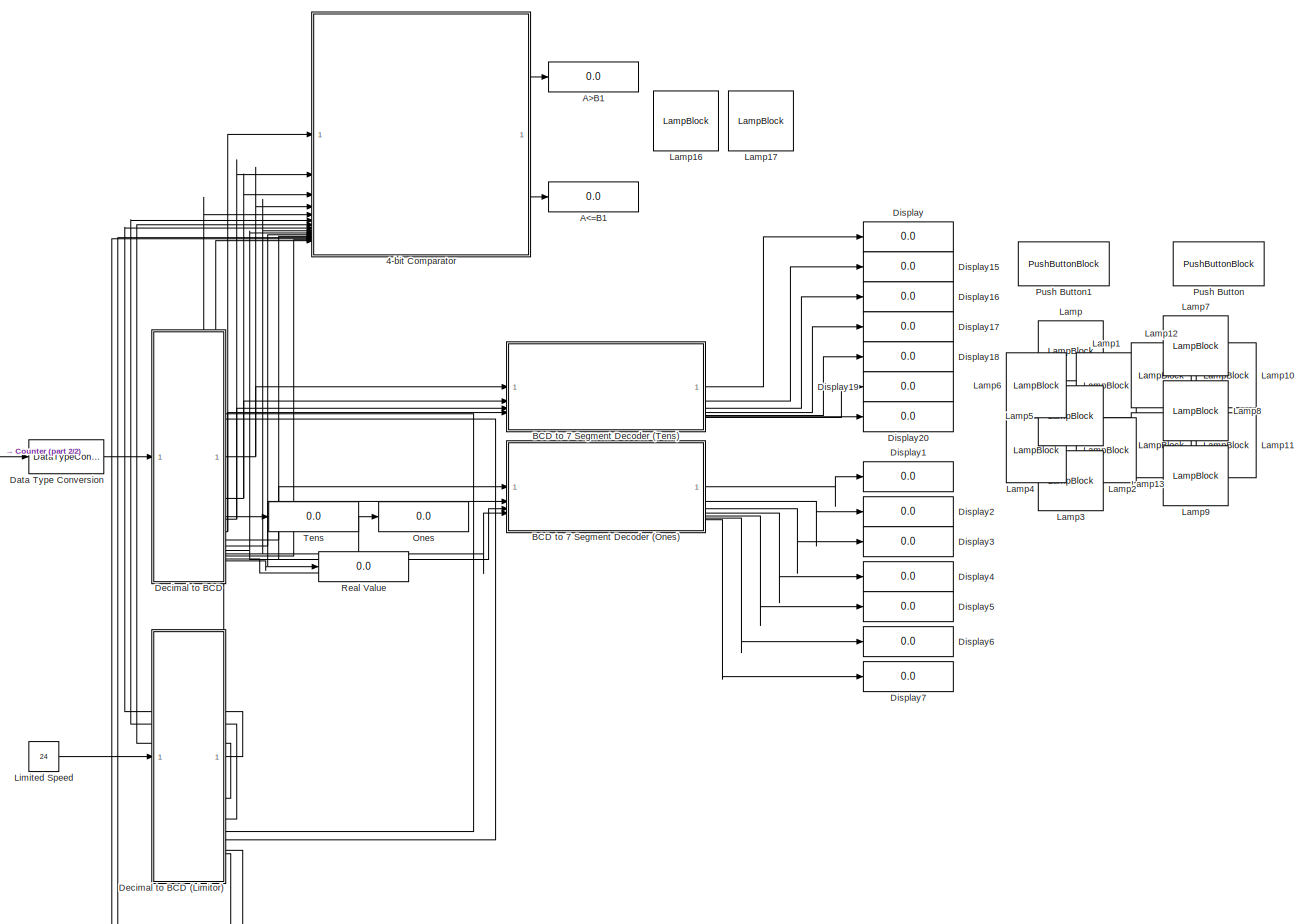
[diagram: root canvas - part 1/2, center side, full height]
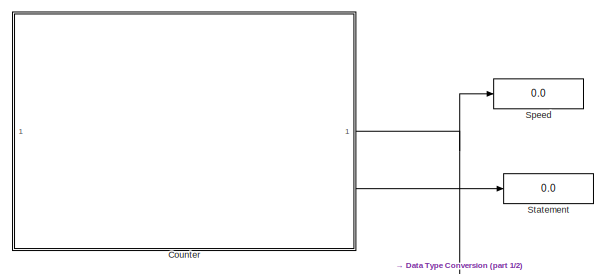
[diagram: root canvas - part 2/2, top left region]
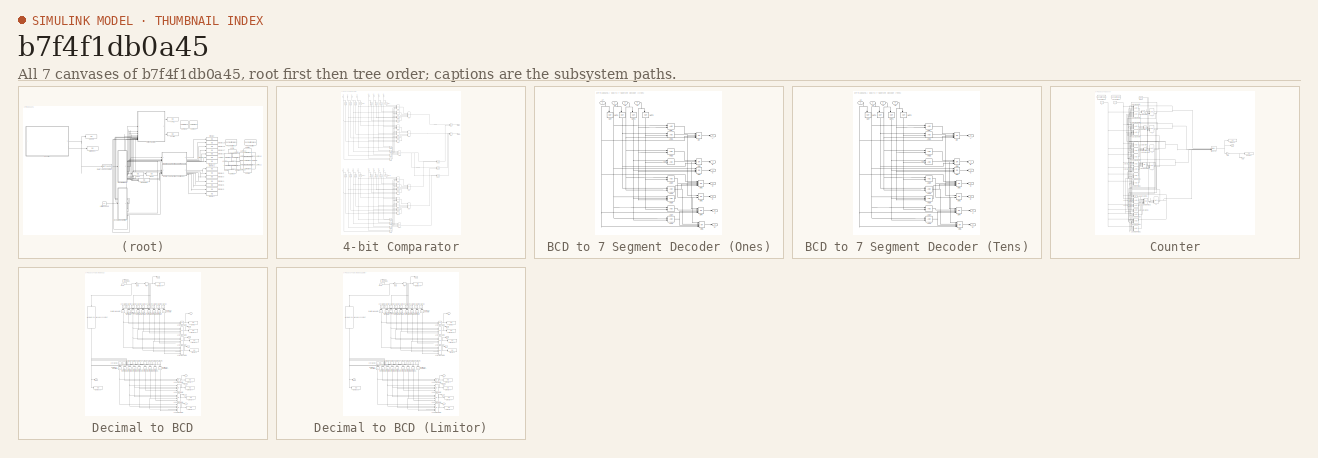
[diagram: thumbnail index - all 7 canvases of the model, root first then tree order]
MODEL slx_b7f4f1db0a45
KIND model
CONFIG AbsTol = auto
CONFIG EnableMultiTasking = off
CONFIG FixedStep = auto
CONFIG MaxStep = auto
CONFIG MinStep = auto
CONFIG RelTol = 1e-3
CONFIG SampleTimeConstraint = Unconstrained
CONFIG SolverName = VariableStepAuto
CONFIG StartTime = 0.0
CONFIG StopTime = 10000
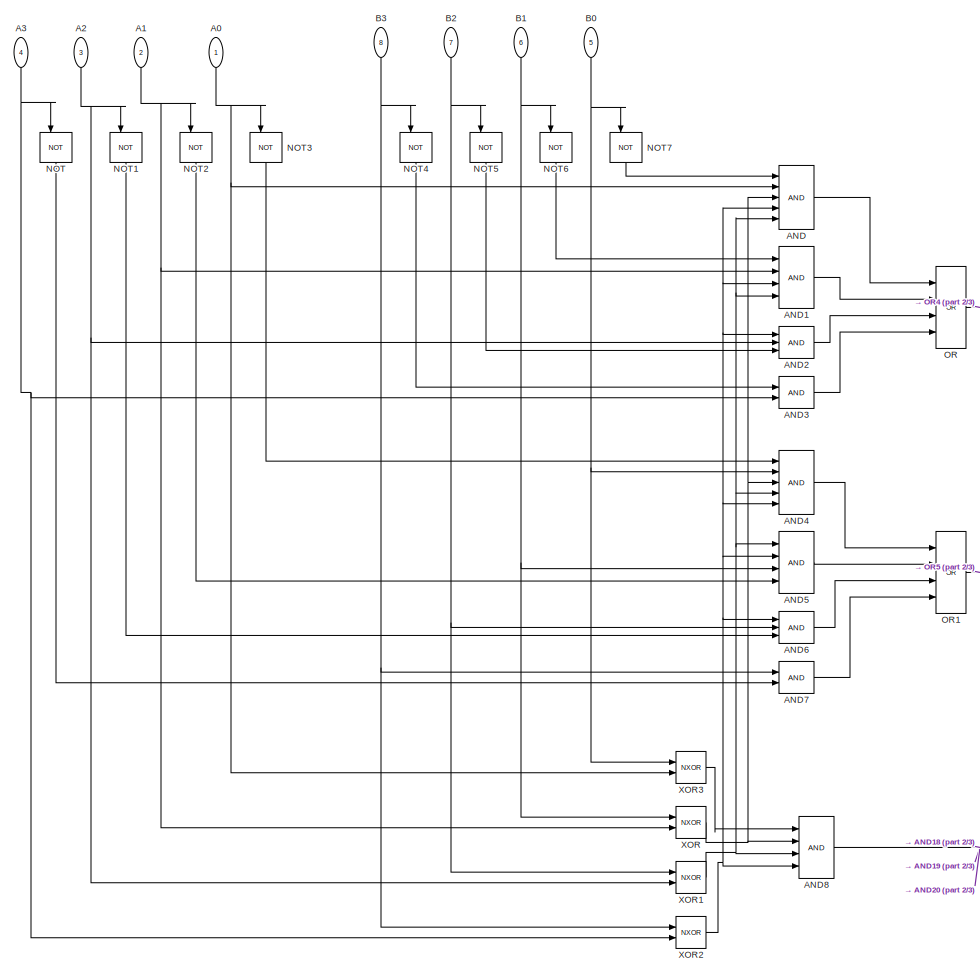
[diagram: 4-bit Comparator - part 1/3, top left region]
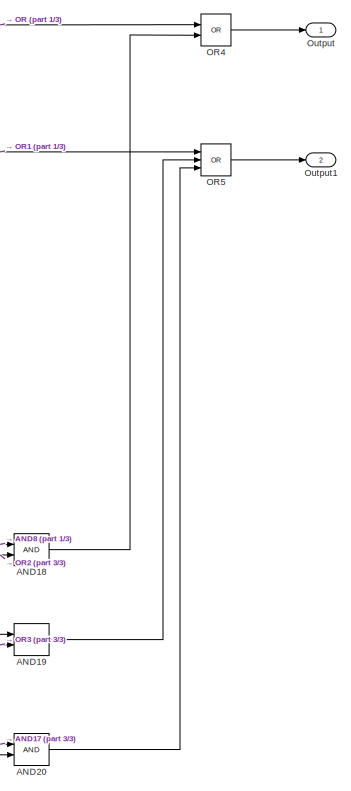
[diagram: 4-bit Comparator - part 2/3, middle right region]
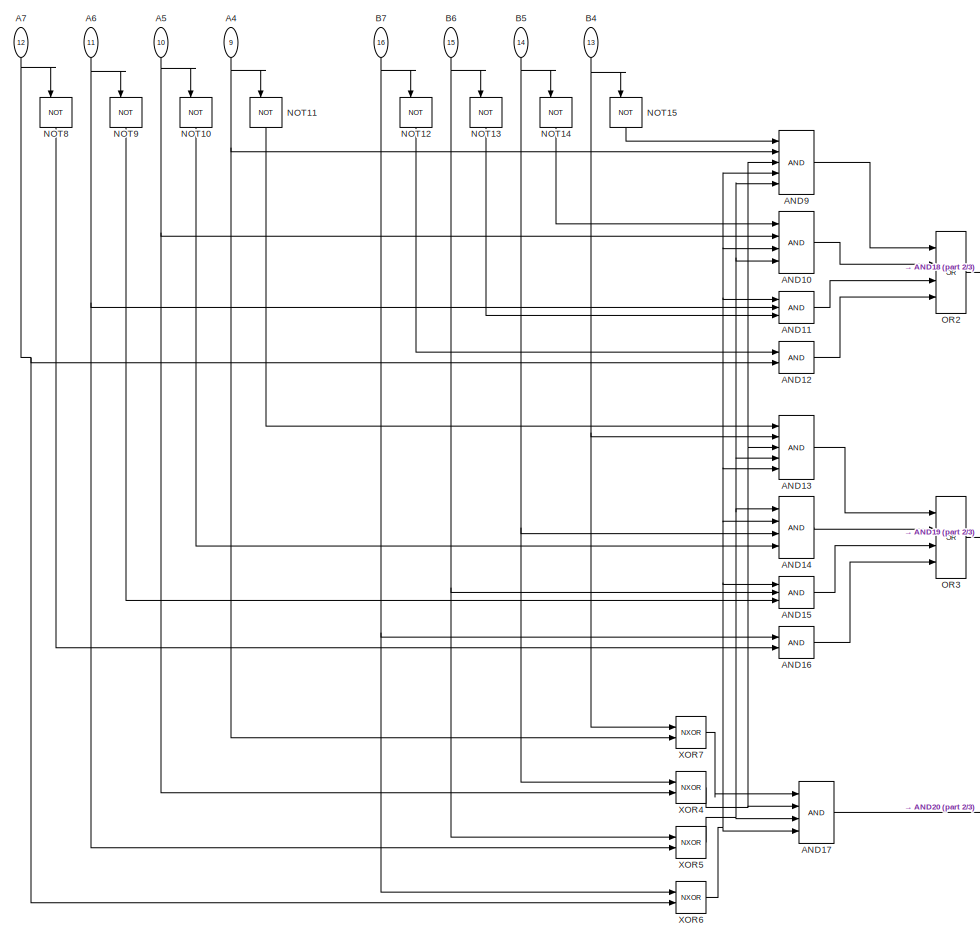
[diagram: 4-bit Comparator - part 3/3, bottom left region]
BLOCK [SubSystem] 4-bit Comparator
BLOCK [Inport] 4-bit Comparator/A0
  NameLocation = left
BLOCK [Inport] 4-bit Comparator/A1
  NameLocation = left
  Port = 2
BLOCK [Inport] 4-bit Comparator/A2
  NameLocation = left
  Port = 3
BLOCK [Inport] 4-bit Comparator/A3
  NameLocation = left
  Port = 4
BLOCK [Inport] 4-bit Comparator/A4
  NameLocation = left
  Port = 9
BLOCK [Inport] 4-bit Comparator/A5
  NameLocation = left
  Port = 10
BLOCK [Inport] 4-bit Comparator/A6
  NameLocation = left
  Port = 11
BLOCK [Inport] 4-bit Comparator/A7
  NameLocation = left
  Port = 12
BLOCK [Logic] 4-bit Comparator/AND
  AllPortsSameDT = off
  IconShape = distinctive
  Inputs = 5
  OutDataTypeStr = boolean
BLOCK [Logic] 4-bit Comparator/AND1
  AllPortsSameDT = off
  IconShape = distinctive
  Inputs = 4
  OutDataTypeStr = boolean
BLOCK [Logic] 4-bit Comparator/AND10
  AllPortsSameDT = off
  IconShape = distinctive
  Inputs = 4
  OutDataTypeStr = boolean
BLOCK [Logic] 4-bit Comparator/AND11
  AllPortsSameDT = off
  IconShape = distinctive
  Inputs = 3
  OutDataTypeStr = boolean
BLOCK [Logic] 4-bit Comparator/AND12
  AllPortsSameDT = off
  IconShape = distinctive
  OutDataTypeStr = boolean
BLOCK [Logic] 4-bit Comparator/AND13
  AllPortsSameDT = off
  IconShape = distinctive
  Inputs = 5
  OutDataTypeStr = boolean
BLOCK [Logic] 4-bit Comparator/AND14
  AllPortsSameDT = off
  IconShape = distinctive
  Inputs = 4
  OutDataTypeStr = boolean
BLOCK [Logic] 4-bit Comparator/AND15
  AllPortsSameDT = off
  IconShape = distinctive
  Inputs = 3
  OutDataTypeStr = boolean
BLOCK [Logic] 4-bit Comparator/AND16
  AllPortsSameDT = off
  IconShape = distinctive
  OutDataTypeStr = boolean
BLOCK [Logic] 4-bit Comparator/AND17
  AllPortsSameDT = off
  IconShape = distinctive
  Inputs = 4
  OutDataTypeStr = boolean
BLOCK [Logic] 4-bit Comparator/AND18
  AllPortsSameDT = off
  IconShape = distinctive
  OutDataTypeStr = boolean
BLOCK [Logic] 4-bit Comparator/AND19
  AllPortsSameDT = off
  IconShape = distinctive
  OutDataTypeStr = boolean
BLOCK [Logic] 4-bit Comparator/AND2
  AllPortsSameDT = off
  IconShape = distinctive
  Inputs = 3
  OutDataTypeStr = boolean
BLOCK [Logic] 4-bit Comparator/AND20
  AllPortsSameDT = off
  IconShape = distinctive
  OutDataTypeStr = boolean
BLOCK [Logic] 4-bit Comparator/AND3
  AllPortsSameDT = off
  IconShape = distinctive
  OutDataTypeStr = boolean
BLOCK [Logic] 4-bit Comparator/AND4
  AllPortsSameDT = off
  IconShape = distinctive
  Inputs = 5
  OutDataTypeStr = boolean
BLOCK [Logic] 4-bit Comparator/AND5
  AllPortsSameDT = off
  IconShape = distinctive
  Inputs = 4
  OutDataTypeStr = boolean
BLOCK [Logic] 4-bit Comparator/AND6
  AllPortsSameDT = off
  IconShape = distinctive
  Inputs = 3
  OutDataTypeStr = boolean
BLOCK [Logic] 4-bit Comparator/AND7
  AllPortsSameDT = off
  IconShape = distinctive
  OutDataTypeStr = boolean
BLOCK [Logic] 4-bit Comparator/AND8
  AllPortsSameDT = off
  IconShape = distinctive
  Inputs = 4
  OutDataTypeStr = boolean
BLOCK [Logic] 4-bit Comparator/AND9
  AllPortsSameDT = off
  IconShape = distinctive
  Inputs = 5
  OutDataTypeStr = boolean
BLOCK [Inport] 4-bit Comparator/B0
  NameLocation = left
  Port = 5
BLOCK [Inport] 4-bit Comparator/B1
  NameLocation = left
  Port = 6
BLOCK [Inport] 4-bit Comparator/B2
  NameLocation = left
  Port = 7
BLOCK [Inport] 4-bit Comparator/B3
  NameLocation = left
  Port = 8
BLOCK [Inport] 4-bit Comparator/B4
  NameLocation = left
  Port = 13
BLOCK [Inport] 4-bit Comparator/B5
  NameLocation = left
  Port = 14
BLOCK [Inport] 4-bit Comparator/B6
  NameLocation = left
  Port = 15
BLOCK [Inport] 4-bit Comparator/B7
  NameLocation = left
  Port = 16
BLOCK [Logic] 4-bit Comparator/NOT
  AllPortsSameDT = off
  IconShape = distinctive
  NameLocation = left
  Operator = NOT
  OutDataTypeStr = boolean
BLOCK [Logic] 4-bit Comparator/NOT1
  AllPortsSameDT = off
  IconShape = distinctive
  NameLocation = left
  Operator = NOT
  OutDataTypeStr = boolean
BLOCK [Logic] 4-bit Comparator/NOT10
  AllPortsSameDT = off
  IconShape = distinctive
  NameLocation = left
  Operator = NOT
  OutDataTypeStr = boolean
BLOCK [Logic] 4-bit Comparator/NOT11
  AllPortsSameDT = off
  IconShape = distinctive
  NameLocation = left
  Operator = NOT
  OutDataTypeStr = boolean
BLOCK [Logic] 4-bit Comparator/NOT12
  AllPortsSameDT = off
  IconShape = distinctive
  NameLocation = left
  Operator = NOT
  OutDataTypeStr = boolean
BLOCK [Logic] 4-bit Comparator/NOT13
  AllPortsSameDT = off
  IconShape = distinctive
  NameLocation = left
  Operator = NOT
  OutDataTypeStr = boolean
BLOCK [Logic] 4-bit Comparator/NOT14
  AllPortsSameDT = off
  IconShape = distinctive
  NameLocation = left
  Operator = NOT
  OutDataTypeStr = boolean
BLOCK [Logic] 4-bit Comparator/NOT15
  AllPortsSameDT = off
  IconShape = distinctive
  NameLocation = left
  Operator = NOT
  OutDataTypeStr = boolean
BLOCK [Logic] 4-bit Comparator/NOT2
  AllPortsSameDT = off
  IconShape = distinctive
  NameLocation = left
  Operator = NOT
  OutDataTypeStr = boolean
BLOCK [Logic] 4-bit Comparator/NOT3
  AllPortsSameDT = off
  IconShape = distinctive
  NameLocation = left
  Operator = NOT
  OutDataTypeStr = boolean
BLOCK [Logic] 4-bit Comparator/NOT4
  AllPortsSameDT = off
  IconShape = distinctive
  NameLocation = left
  Operator = NOT
  OutDataTypeStr = boolean
BLOCK [Logic] 4-bit Comparator/NOT5
  AllPortsSameDT = off
  IconShape = distinctive
  NameLocation = left
  Operator = NOT
  OutDataTypeStr = boolean
BLOCK [Logic] 4-bit Comparator/NOT6
  AllPortsSameDT = off
  IconShape = distinctive
  NameLocation = left
  Operator = NOT
  OutDataTypeStr = boolean
BLOCK [Logic] 4-bit Comparator/NOT7
  AllPortsSameDT = off
  IconShape = distinctive
  NameLocation = left
  Operator = NOT
  OutDataTypeStr = boolean
BLOCK [Logic] 4-bit Comparator/NOT8
  AllPortsSameDT = off
  IconShape = distinctive
  NameLocation = left
  Operator = NOT
  OutDataTypeStr = boolean
BLOCK [Logic] 4-bit Comparator/NOT9
  AllPortsSameDT = off
  IconShape = distinctive
  NameLocation = left
  Operator = NOT
  OutDataTypeStr = boolean
BLOCK [Logic] 4-bit Comparator/OR
  AllPortsSameDT = off
  IconShape = distinctive
  Inputs = 4
  Operator = OR
  OutDataTypeStr = boolean
BLOCK [Logic] 4-bit Comparator/OR1
  AllPortsSameDT = off
  IconShape = distinctive
  Inputs = 4
  Operator = OR
  OutDataTypeStr = boolean
BLOCK [Logic] 4-bit Comparator/OR2
  AllPortsSameDT = off
  IconShape = distinctive
  Inputs = 4
  Operator = OR
  OutDataTypeStr = boolean
BLOCK [Logic] 4-bit Comparator/OR3
  AllPortsSameDT = off
  IconShape = distinctive
  Inputs = 4
  Operator = OR
  OutDataTypeStr = boolean
BLOCK [Logic] 4-bit Comparator/OR4
  AllPortsSameDT = off
  IconShape = distinctive
  Operator = OR
  OutDataTypeStr = boolean
BLOCK [Logic] 4-bit Comparator/OR5
  AllPortsSameDT = off
  IconShape = distinctive
  Inputs = 3
  Operator = OR
  OutDataTypeStr = boolean
BLOCK [Outport] 4-bit Comparator/Output
BLOCK [Outport] 4-bit Comparator/Output1
  Port = 2
BLOCK [Logic] 4-bit Comparator/XOR
  AllPortsSameDT = off
  IconShape = distinctive
  Operator = NXOR
  OutDataTypeStr = boolean
BLOCK [Logic] 4-bit Comparator/XOR1
  AllPortsSameDT = off
  IconShape = distinctive
  Operator = NXOR
  OutDataTypeStr = boolean
BLOCK [Logic] 4-bit Comparator/XOR2
  AllPortsSameDT = off
  IconShape = distinctive
  Operator = NXOR
  OutDataTypeStr = boolean
BLOCK [Logic] 4-bit Comparator/XOR3
  AllPortsSameDT = off
  IconShape = distinctive
  Operator = NXOR
  OutDataTypeStr = boolean
BLOCK [Logic] 4-bit Comparator/XOR4
  AllPortsSameDT = off
  IconShape = distinctive
  Operator = NXOR
  OutDataTypeStr = boolean
BLOCK [Logic] 4-bit Comparator/XOR5
  AllPortsSameDT = off
  IconShape = distinctive
  Operator = NXOR
  OutDataTypeStr = boolean
BLOCK [Logic] 4-bit Comparator/XOR6
  AllPortsSameDT = off
  IconShape = distinctive
  Operator = NXOR
  OutDataTypeStr = boolean
BLOCK [Logic] 4-bit Comparator/XOR7
  AllPortsSameDT = off
  IconShape = distinctive
  Operator = NXOR
  OutDataTypeStr = boolean
BLOCK [Display] A<=B1
  Decimation = 1
BLOCK [Display] A>B1
  Decimation = 1
BLOCK [SubSystem] BCD to 7 Segment Decoder (Ones)
BLOCK [Outport] BCD to 7 Segment Decoder (Ones)/A
BLOCK [Inport] BCD to 7 Segment Decoder (Ones)/A4
  Port = 4
BLOCK [Inport] BCD to 7 Segment Decoder (Ones)/A5
  Port = 3
BLOCK [Inport] BCD to 7 Segment Decoder (Ones)/A6
  Port = 2
BLOCK [Inport] BCD to 7 Segment Decoder (Ones)/A7
BLOCK [Logic] BCD to 7 Segment Decoder (Ones)/AND
  AllPortsSameDT = off
  IconShape = distinctive
  OutDataTypeStr = boolean
BLOCK [Logic] BCD to 7 Segment Decoder (Ones)/AND1
  AllPortsSameDT = off
  IconShape = distinctive
  OutDataTypeStr = boolean
BLOCK [Logic] BCD to 7 Segment Decoder (Ones)/AND2
  AllPortsSameDT = off
  IconShape = distinctive
  OutDataTypeStr = boolean
BLOCK [Logic] BCD to 7 Segment Decoder (Ones)/AND3
  AllPortsSameDT = off
  IconShape = distinctive
  OutDataTypeStr = boolean
BLOCK [Logic] BCD to 7 Segment Decoder (Ones)/AND4
  AllPortsSameDT = off
  IconShape = distinctive
  OutDataTypeStr = boolean
BLOCK [Logic] BCD to 7 Segment Decoder (Ones)/AND5
  AllPortsSameDT = off
  IconShape = distinctive
  OutDataTypeStr = boolean
BLOCK [Logic] BCD to 7 Segment Decoder (Ones)/AND6
  AllPortsSameDT = off
  IconShape = distinctive
  Inputs = 3
  OutDataTypeStr = boolean
BLOCK [Logic] BCD to 7 Segment Decoder (Ones)/AND7
  AllPortsSameDT = off
  IconShape = distinctive
  OutDataTypeStr = boolean
BLOCK [Logic] BCD to 7 Segment Decoder (Ones)/AND8
  AllPortsSameDT = off
  IconShape = distinctive
  OutDataTypeStr = boolean
BLOCK [Outport] BCD to 7 Segment Decoder (Ones)/B
  Port = 2
BLOCK [Outport] BCD to 7 Segment Decoder (Ones)/C
  Port = 3
BLOCK [Outport] BCD to 7 Segment Decoder (Ones)/D
  Port = 4
BLOCK [Outport] BCD to 7 Segment Decoder (Ones)/E
  Port = 5
BLOCK [Outport] BCD to 7 Segment Decoder (Ones)/F
  Port = 6
BLOCK [Outport] BCD to 7 Segment Decoder (Ones)/G
  Port = 7
BLOCK [Logic] BCD to 7 Segment Decoder (Ones)/NOT
  AllPortsSameDT = off
  IconShape = distinctive
  NameLocation = left
  Operator = NOT
  OutDataTypeStr = boolean
BLOCK [Logic] BCD to 7 Segment Decoder (Ones)/NOT1
  AllPortsSameDT = off
  IconShape = distinctive
  NameLocation = left
  Operator = NOT
  OutDataTypeStr = boolean
BLOCK [Logic] BCD to 7 Segment Decoder (Ones)/NOT2
  AllPortsSameDT = off
  IconShape = distinctive
  NameLocation = left
  Operator = NOT
  OutDataTypeStr = boolean
BLOCK [Logic] BCD to 7 Segment Decoder (Ones)/NOT4
  AllPortsSameDT = off
  IconShape = distinctive
  NameLocation = left
  Operator = NOT
  OutDataTypeStr = boolean
BLOCK [Logic] BCD to 7 Segment Decoder (Ones)/OR
  AllPortsSameDT = off
  IconShape = distinctive
  Inputs = 4
  Operator = OR
  OutDataTypeStr = boolean
BLOCK [Logic] BCD to 7 Segment Decoder (Ones)/OR1
  AllPortsSameDT = off
  IconShape = distinctive
  Inputs = 3
  Operator = OR
  OutDataTypeStr = boolean
BLOCK [Logic] BCD to 7 Segment Decoder (Ones)/OR2
  AllPortsSameDT = off
  IconShape = distinctive
  Inputs = 5
  Operator = OR
  OutDataTypeStr = boolean
BLOCK [Logic] BCD to 7 Segment Decoder (Ones)/OR3
  AllPortsSameDT = off
  IconShape = distinctive
  Operator = OR
  OutDataTypeStr = boolean
BLOCK [Logic] BCD to 7 Segment Decoder (Ones)/OR4
  AllPortsSameDT = off
  IconShape = distinctive
  Inputs = 4
  Operator = OR
  OutDataTypeStr = boolean
BLOCK [Logic] BCD to 7 Segment Decoder (Ones)/OR5
  AllPortsSameDT = off
  IconShape = distinctive
  Inputs = 4
  Operator = OR
  OutDataTypeStr = boolean
BLOCK [Logic] BCD to 7 Segment Decoder (Ones)/OR6
  AllPortsSameDT = off
  IconShape = distinctive
  Inputs = 3
  Operator = OR
  OutDataTypeStr = boolean
BLOCK [SubSystem] BCD to 7 Segment Decoder (Tens)
BLOCK [Outport] BCD to 7 Segment Decoder (Tens)/A
BLOCK [Inport] BCD to 7 Segment Decoder (Tens)/A0
  Port = 4
BLOCK [Inport] BCD to 7 Segment Decoder (Tens)/A1
  Port = 3
BLOCK [Inport] BCD to 7 Segment Decoder (Tens)/A2
  Port = 2
BLOCK [Inport] BCD to 7 Segment Decoder (Tens)/A3
BLOCK [Logic] BCD to 7 Segment Decoder (Tens)/AND
  AllPortsSameDT = off
  IconShape = distinctive
  OutDataTypeStr = boolean
BLOCK [Logic] BCD to 7 Segment Decoder (Tens)/AND1
  AllPortsSameDT = off
  IconShape = distinctive
  OutDataTypeStr = boolean
BLOCK [Logic] BCD to 7 Segment Decoder (Tens)/AND2
  AllPortsSameDT = off
  IconShape = distinctive
  OutDataTypeStr = boolean
BLOCK [Logic] BCD to 7 Segment Decoder (Tens)/AND3
  AllPortsSameDT = off
  IconShape = distinctive
  OutDataTypeStr = boolean
BLOCK [Logic] BCD to 7 Segment Decoder (Tens)/AND4
  AllPortsSameDT = off
  IconShape = distinctive
  OutDataTypeStr = boolean
BLOCK [Logic] BCD to 7 Segment Decoder (Tens)/AND5
  AllPortsSameDT = off
  IconShape = distinctive
  OutDataTypeStr = boolean
BLOCK [Logic] BCD to 7 Segment Decoder (Tens)/AND6
  AllPortsSameDT = off
  IconShape = distinctive
  Inputs = 3
  OutDataTypeStr = boolean
BLOCK [Logic] BCD to 7 Segment Decoder (Tens)/AND7
  AllPortsSameDT = off
  IconShape = distinctive
  OutDataTypeStr = boolean
BLOCK [Logic] BCD to 7 Segment Decoder (Tens)/AND8
  AllPortsSameDT = off
  IconShape = distinctive
  OutDataTypeStr = boolean
BLOCK [Outport] BCD to 7 Segment Decoder (Tens)/B
  Port = 2
BLOCK [Outport] BCD to 7 Segment Decoder (Tens)/C
  Port = 3
BLOCK [Outport] BCD to 7 Segment Decoder (Tens)/D
  Port = 4
BLOCK [Outport] BCD to 7 Segment Decoder (Tens)/E
  Port = 5
BLOCK [Outport] BCD to 7 Segment Decoder (Tens)/F
  Port = 6
BLOCK [Outport] BCD to 7 Segment Decoder (Tens)/G
  Port = 7
BLOCK [Logic] BCD to 7 Segment Decoder (Tens)/NOT
  AllPortsSameDT = off
  IconShape = distinctive
  NameLocation = left
  Operator = NOT
  OutDataTypeStr = boolean
BLOCK [Logic] BCD to 7 Segment Decoder (Tens)/NOT1
  AllPortsSameDT = off
  IconShape = distinctive
  NameLocation = left
  Operator = NOT
  OutDataTypeStr = boolean
BLOCK [Logic] BCD to 7 Segment Decoder (Tens)/NOT2
  AllPortsSameDT = off
  IconShape = distinctive
  NameLocation = left
  Operator = NOT
  OutDataTypeStr = boolean
BLOCK [Logic] BCD to 7 Segment Decoder (Tens)/NOT4
  AllPortsSameDT = off
  IconShape = distinctive
  NameLocation = left
  Operator = NOT
  OutDataTypeStr = boolean
BLOCK [Logic] BCD to 7 Segment Decoder (Tens)/OR
  AllPortsSameDT = off
  IconShape = distinctive
  Inputs = 4
  Operator = OR
  OutDataTypeStr = boolean
BLOCK [Logic] BCD to 7 Segment Decoder (Tens)/OR1
  AllPortsSameDT = off
  IconShape = distinctive
  Inputs = 3
  Operator = OR
  OutDataTypeStr = boolean
BLOCK [Logic] BCD to 7 Segment Decoder (Tens)/OR2
  AllPortsSameDT = off
  IconShape = distinctive
  Inputs = 5
  Operator = OR
  OutDataTypeStr = boolean
BLOCK [Logic] BCD to 7 Segment Decoder (Tens)/OR3
  AllPortsSameDT = off
  IconShape = distinctive
  Operator = OR
  OutDataTypeStr = boolean
BLOCK [Logic] BCD to 7 Segment Decoder (Tens)/OR4
  AllPortsSameDT = off
  IconShape = distinctive
  Inputs = 4
  Operator = OR
  OutDataTypeStr = boolean
BLOCK [Logic] BCD to 7 Segment Decoder (Tens)/OR5
  AllPortsSameDT = off
  IconShape = distinctive
  Inputs = 4
  Operator = OR
  OutDataTypeStr = boolean
BLOCK [Logic] BCD to 7 Segment Decoder (Tens)/OR6
  AllPortsSameDT = off
  IconShape = distinctive
  Inputs = 3
  Operator = OR
  OutDataTypeStr = boolean
BLOCK [SubSystem] Counter
BLOCK [Reference] Counter/Bit Concat  REF=hdlsllib/Logic and Bit
Operations/Bit Concat
  SourceBlock = hdlsllib/Logic and Bit\nOperations/Bit Concat
  SourceType = Bit Concat
BLOCK [Reference] Counter/Clock  REF=simulink_extras/Flip Flops/Clock
  SourceBlock = simulink_extras/Flip Flops/Clock
  SourceType = Digital clock
BLOCK [Gain] Counter/Gain
  Gain = 4
BLOCK [Logic] Counter/Logical Operator
  AllPortsSameDT = off
  Inputs = 6
  OutDataTypeStr = boolean
BLOCK [Logic] Counter/Logical Operator1
  AllPortsSameDT = off
  Inputs = 6
  OutDataTypeStr = boolean
BLOCK [Logic] Counter/Logical Operator10
  AllPortsSameDT = off
  Inputs = 5
  Operator = OR
  OutDataTypeStr = boolean
BLOCK [Logic] Counter/Logical Operator11
  AllPortsSameDT = off
  Inputs = 3
  OutDataTypeStr = boolean
BLOCK [Logic] Counter/Logical Operator12
  AllPortsSameDT = off
  Inputs = 4
  OutDataTypeStr = boolean
BLOCK [Logic] Counter/Logical Operator13
  AllPortsSameDT = off
  Inputs = 4
  OutDataTypeStr = boolean
BLOCK [Logic] Counter/Logical Operator14
  AllPortsSameDT = off
  Inputs = 4
  OutDataTypeStr = boolean
BLOCK [Logic] Counter/Logical Operator15
  AllPortsSameDT = off
  OutDataTypeStr = boolean
BLOCK [Logic] Counter/Logical Operator16
  AllPortsSameDT = off
  Inputs = 5
  OutDataTypeStr = boolean
BLOCK [Logic] Counter/Logical Operator17
  AllPortsSameDT = off
  Inputs = 3
  OutDataTypeStr = boolean
BLOCK [Logic] Counter/Logical Operator18
  AllPortsSameDT = off
  Inputs = 3
  OutDataTypeStr = boolean
BLOCK [Logic] Counter/Logical Operator19
  AllPortsSameDT = off
  Inputs = 3
  OutDataTypeStr = boolean
BLOCK [Logic] Counter/Logical Operator2
  AllPortsSameDT = off
  Operator = OR
  OutDataTypeStr = boolean
BLOCK [Logic] Counter/Logical Operator20
  AllPortsSameDT = off
  Inputs = 5
  OutDataTypeStr = boolean
BLOCK [Logic] Counter/Logical Operator21
  AllPortsSameDT = off
  Inputs = 5
  OutDataTypeStr = boolean
BLOCK [Logic] Counter/Logical Operator22
  AllPortsSameDT = off
  Inputs = 7
  Operator = OR
  OutDataTypeStr = boolean
BLOCK [Logic] Counter/Logical Operator3
  AllPortsSameDT = off
  Inputs = 5
  OutDataTypeStr = boolean
BLOCK [Logic] Counter/Logical Operator4
  AllPortsSameDT = off
  Inputs = 6
  OutDataTypeStr = boolean
BLOCK [Logic] Counter/Logical Operator5
  AllPortsSameDT = off
  Inputs = 3
  Operator = OR
  OutDataTypeStr = boolean
BLOCK [Logic] Counter/Logical Operator6
  AllPortsSameDT = off
  Inputs = 4
  OutDataTypeStr = boolean
BLOCK [Logic] Counter/Logical Operator7
  AllPortsSameDT = off
  Inputs = 5
  OutDataTypeStr = boolean
BLOCK [Logic] Counter/Logical Operator8
  AllPortsSameDT = off
  Inputs = 5
  OutDataTypeStr = boolean
BLOCK [Logic] Counter/Logical Operator9
  AllPortsSameDT = off
  Inputs = 4
  Operator = OR
  OutDataTypeStr = boolean
BLOCK [Outport] Counter/Out1
BLOCK [Outport] Counter/Out2
  Port = 2
BLOCK [PushButtonBlock] Counter/Push Button
  ButtonText = increase
  OffValue = 0.000000
BLOCK [PushButtonBlock] Counter/Push Button1
  ButtonText = decrease
  OffValue = 0.000000
BLOCK [Reference] Counter/T0  REF=simulink_extras/Flip Flops/J-K
Flip-Flop
  SourceBlock = simulink_extras/Flip Flops/J-K\nFlip-Flop
  SourceType = JKFlipFlop
BLOCK [Reference] Counter/T1  REF=simulink_extras/Flip Flops/J-K
Flip-Flop
  SourceBlock = simulink_extras/Flip Flops/J-K\nFlip-Flop
  SourceType = JKFlipFlop
BLOCK [Reference] Counter/T2  REF=simulink_extras/Flip Flops/J-K
Flip-Flop
  SourceBlock = simulink_extras/Flip Flops/J-K\nFlip-Flop
  SourceType = JKFlipFlop
BLOCK [Reference] Counter/T3  REF=simulink_extras/Flip Flops/J-K
Flip-Flop
  SourceBlock = simulink_extras/Flip Flops/J-K\nFlip-Flop
  SourceType = JKFlipFlop
BLOCK [Reference] Counter/T4  REF=simulink_extras/Flip Flops/J-K
Flip-Flop
  SourceBlock = simulink_extras/Flip Flops/J-K\nFlip-Flop
  SourceType = JKFlipFlop
BLOCK [Constant] Counter/X
  Value = 0
BLOCK [Display] Counter/real value
  Decimation = 1
BLOCK [Display] Counter/statement
  Decimation = 1
BLOCK [Constant] Counter/y
  Value = 0
BLOCK [DataTypeConversion] Data Type Conversion
  RndMeth = Floor
  SaturateOnIntegerOverflow = off
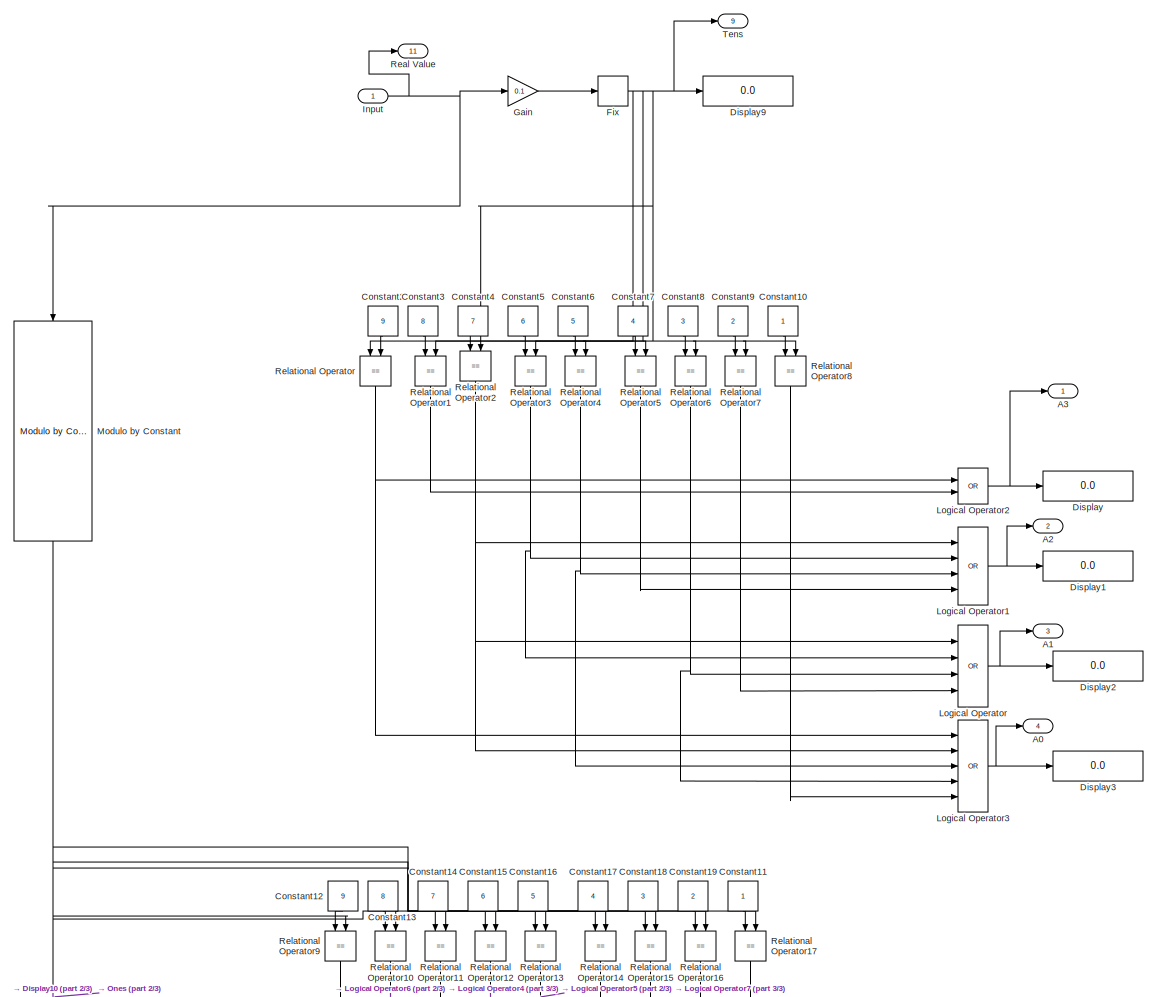
[diagram: Decimal to BCD - part 1/3, full width, middle band]
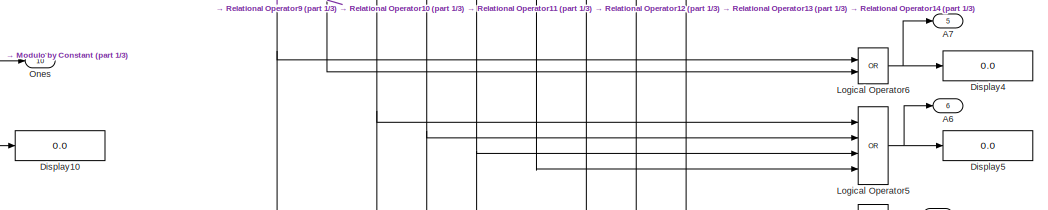
[diagram: Decimal to BCD - part 2/3, full width, bottom band]
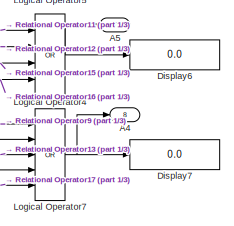
[diagram: Decimal to BCD - part 3/3, bottom right region]
BLOCK [SubSystem] Decimal to BCD
BLOCK [SubSystem] Decimal to BCD (Limitor)
BLOCK [Outport] Decimal to BCD (Limitor)/B0
  Port = 4
BLOCK [Outport] Decimal to BCD (Limitor)/B1
  Port = 3
BLOCK [Outport] Decimal to BCD (Limitor)/B2
  Port = 2
BLOCK [Outport] Decimal to BCD (Limitor)/B3
BLOCK [Outport] Decimal to BCD (Limitor)/B4
  Port = 8
BLOCK [Outport] Decimal to BCD (Limitor)/B5
  Port = 7
BLOCK [Outport] Decimal to BCD (Limitor)/B6
  Port = 6
BLOCK [Outport] Decimal to BCD (Limitor)/B7
  Port = 5
BLOCK [Constant] Decimal to BCD (Limitor)/Constant10
  NameLocation = left
BLOCK [Constant] Decimal to BCD (Limitor)/Constant11
  NameLocation = left
BLOCK [Constant] Decimal to BCD (Limitor)/Constant12
  NameLocation = left
  Value = 9
BLOCK [Constant] Decimal to BCD (Limitor)/Constant13
  NameLocation = left
  Value = 8
BLOCK [Constant] Decimal to BCD (Limitor)/Constant14
  NameLocation = left
  Value = 7
BLOCK [Constant] Decimal to BCD (Limitor)/Constant15
  NameLocation = left
  Value = 6
BLOCK [Constant] Decimal to BCD (Limitor)/Constant16
  NameLocation = left
  Value = 5
BLOCK [Constant] Decimal to BCD (Limitor)/Constant17
  NameLocation = left
  Value = 4
BLOCK [Constant] Decimal to BCD (Limitor)/Constant18
  NameLocation = left
  Value = 3
BLOCK [Constant] Decimal to BCD (Limitor)/Constant19
  NameLocation = left
  Value = 2
BLOCK [Constant] Decimal to BCD (Limitor)/Constant2
  NameLocation = left
  Value = 9
BLOCK [Constant] Decimal to BCD (Limitor)/Constant3
  NameLocation = left
  Value = 8
BLOCK [Constant] Decimal to BCD (Limitor)/Constant4
  NameLocation = left
  Value = 7
BLOCK [Constant] Decimal to BCD (Limitor)/Constant5
  NameLocation = left
  Value = 6
BLOCK [Constant] Decimal to BCD (Limitor)/Constant6
  NameLocation = left
  Value = 5
BLOCK [Constant] Decimal to BCD (Limitor)/Constant7
  NameLocation = left
  Value = 4
BLOCK [Constant] Decimal to BCD (Limitor)/Constant8
  NameLocation = left
  Value = 3
BLOCK [Constant] Decimal to BCD (Limitor)/Constant9
  NameLocation = left
  Value = 2
BLOCK [Display] Decimal to BCD (Limitor)/Display
  Decimation = 1
BLOCK [Display] Decimal to BCD (Limitor)/Display1
  Decimation = 1
BLOCK [Display] Decimal to BCD (Limitor)/Display10
  Decimation = 1
BLOCK [Display] Decimal to BCD (Limitor)/Display2
  Decimation = 1
BLOCK [Display] Decimal to BCD (Limitor)/Display3
  Decimation = 1
BLOCK [Display] Decimal to BCD (Limitor)/Display4
  Decimation = 1
BLOCK [Display] Decimal to BCD (Limitor)/Display5
  Decimation = 1
BLOCK [Display] Decimal to BCD (Limitor)/Display6
  Decimation = 1
BLOCK [Display] Decimal to BCD (Limitor)/Display7
  Decimation = 1
BLOCK [Display] Decimal to BCD (Limitor)/Display9
  Decimation = 1
BLOCK [Rounding] Decimal to BCD (Limitor)/Fix
  Operator = fix
BLOCK [Gain] Decimal to BCD (Limitor)/Gain
  Gain = 0.1
BLOCK [Inport] Decimal to BCD (Limitor)/Input
BLOCK [Logic] Decimal to BCD (Limitor)/Logical Operator
  AllPortsSameDT = off
  Inputs = 4
  Operator = OR
  OutDataTypeStr = boolean
BLOCK [Logic] Decimal to BCD (Limitor)/Logical Operator1
  AllPortsSameDT = off
  Inputs = 4
  Operator = OR
  OutDataTypeStr = boolean
BLOCK [Logic] Decimal to BCD (Limitor)/Logical Operator2
  AllPortsSameDT = off
  Operator = OR
  OutDataTypeStr = boolean
BLOCK [Logic] Decimal to BCD (Limitor)/Logical Operator3
  AllPortsSameDT = off
  Inputs = 5
  Operator = OR
  OutDataTypeStr = boolean
BLOCK [Logic] Decimal to BCD (Limitor)/Logical Operator4
  AllPortsSameDT = off
  Inputs = 4
  Operator = OR
  OutDataTypeStr = boolean
BLOCK [Logic] Decimal to BCD (Limitor)/Logical Operator5
  AllPortsSameDT = off
  Inputs = 4
  Operator = OR
  OutDataTypeStr = boolean
BLOCK [Logic] Decimal to BCD (Limitor)/Logical Operator6
  AllPortsSameDT = off
  Operator = OR
  OutDataTypeStr = boolean
BLOCK [Logic] Decimal to BCD (Limitor)/Logical Operator7
  AllPortsSameDT = off
  Inputs = 5
  Operator = OR
  OutDataTypeStr = boolean
BLOCK [Reference] Decimal to BCD (Limitor)/Modulo by Constant  REF=embmathops/Modulo by Constant
  LibrarySourceBlock = embeddedMathLib/Modulo by Constant
  NameLocation = left
  SourceBlock = embmathops/Modulo by Constant
  SourceType = fixed.system.ModByConstant
BLOCK [Outport] Decimal to BCD (Limitor)/Ones
  Port = 10
BLOCK [Outport] Decimal to BCD (Limitor)/Real Value
  Port = 11
BLOCK [RelationalOperator] Decimal to BCD (Limitor)/Relational Operator
  InputSameDT = off
  NameLocation = left
  Operator = ==
  OutDataTypeStr = boolean
  RndMeth = Simplest
BLOCK [RelationalOperator] Decimal to BCD (Limitor)/Relational Operator1
  InputSameDT = off
  NameLocation = left
  Operator = ==
  OutDataTypeStr = boolean
  RndMeth = Simplest
BLOCK [RelationalOperator] Decimal to BCD (Limitor)/Relational Operator10
  InputSameDT = off
  NameLocation = left
  Operator = ==
  OutDataTypeStr = boolean
  RndMeth = Simplest
BLOCK [RelationalOperator] Decimal to BCD (Limitor)/Relational Operator11
  InputSameDT = off
  NameLocation = left
  Operator = ==
  OutDataTypeStr = boolean
  RndMeth = Simplest
BLOCK [RelationalOperator] Decimal to BCD (Limitor)/Relational Operator12
  InputSameDT = off
  NameLocation = left
  Operator = ==
  OutDataTypeStr = boolean
  RndMeth = Simplest
BLOCK [RelationalOperator] Decimal to BCD (Limitor)/Relational Operator13
  InputSameDT = off
  NameLocation = left
  Operator = ==
  OutDataTypeStr = boolean
  RndMeth = Simplest
BLOCK [RelationalOperator] Decimal to BCD (Limitor)/Relational Operator14
  InputSameDT = off
  NameLocation = left
  Operator = ==
  OutDataTypeStr = boolean
  RndMeth = Simplest
BLOCK [RelationalOperator] Decimal to BCD (Limitor)/Relational Operator15
  InputSameDT = off
  NameLocation = left
  Operator = ==
  OutDataTypeStr = boolean
  RndMeth = Simplest
BLOCK [RelationalOperator] Decimal to BCD (Limitor)/Relational Operator16
  InputSameDT = off
  NameLocation = left
  Operator = ==
  OutDataTypeStr = boolean
  RndMeth = Simplest
BLOCK [RelationalOperator] Decimal to BCD (Limitor)/Relational Operator17
  InputSameDT = off
  NameLocation = left
  Operator = ==
  OutDataTypeStr = boolean
  RndMeth = Simplest
BLOCK [RelationalOperator] Decimal to BCD (Limitor)/Relational Operator2
  InputSameDT = off
  NameLocation = left
  Operator = ==
  OutDataTypeStr = boolean
  RndMeth = Simplest
BLOCK [RelationalOperator] Decimal to BCD (Limitor)/Relational Operator3
  InputSameDT = off
  NameLocation = left
  Operator = ==
  OutDataTypeStr = boolean
  RndMeth = Simplest
BLOCK [RelationalOperator] Decimal to BCD (Limitor)/Relational Operator4
  InputSameDT = off
  NameLocation = left
  Operator = ==
  OutDataTypeStr = boolean
  RndMeth = Simplest
BLOCK [RelationalOperator] Decimal to BCD (Limitor)/Relational Operator5
  InputSameDT = off
  NameLocation = left
  Operator = ==
  OutDataTypeStr = boolean
  RndMeth = Simplest
BLOCK [RelationalOperator] Decimal to BCD (Limitor)/Relational Operator6
  InputSameDT = off
  NameLocation = left
  Operator = ==
  OutDataTypeStr = boolean
  RndMeth = Simplest
BLOCK [RelationalOperator] Decimal to BCD (Limitor)/Relational Operator7
  InputSameDT = off
  NameLocation = left
  Operator = ==
  OutDataTypeStr = boolean
  RndMeth = Simplest
BLOCK [RelationalOperator] Decimal to BCD (Limitor)/Relational Operator8
  InputSameDT = off
  NameLocation = left
  Operator = ==
  OutDataTypeStr = boolean
  RndMeth = Simplest
BLOCK [RelationalOperator] Decimal to BCD (Limitor)/Relational Operator9
  InputSameDT = off
  NameLocation = left
  Operator = ==
  OutDataTypeStr = boolean
  RndMeth = Simplest
BLOCK [Outport] Decimal to BCD (Limitor)/Tens
  Port = 9
BLOCK [Outport] Decimal to BCD/A0
  Port = 4
BLOCK [Outport] Decimal to BCD/A1
  Port = 3
BLOCK [Outport] Decimal to BCD/A2
  Port = 2
BLOCK [Outport] Decimal to BCD/A3
BLOCK [Outport] Decimal to BCD/A4
  Port = 8
BLOCK [Outport] Decimal to BCD/A5
  Port = 7
BLOCK [Outport] Decimal to BCD/A6
  Port = 6
BLOCK [Outport] Decimal to BCD/A7
  Port = 5
BLOCK [Constant] Decimal to BCD/Constant10
  NameLocation = left
BLOCK [Constant] Decimal to BCD/Constant11
  NameLocation = left
BLOCK [Constant] Decimal to BCD/Constant12
  NameLocation = left
  Value = 9
BLOCK [Constant] Decimal to BCD/Constant13
  NameLocation = left
  Value = 8
BLOCK [Constant] Decimal to BCD/Constant14
  NameLocation = left
  Value = 7
BLOCK [Constant] Decimal to BCD/Constant15
  NameLocation = left
  Value = 6
BLOCK [Constant] Decimal to BCD/Constant16
  NameLocation = left
  Value = 5
BLOCK [Constant] Decimal to BCD/Constant17
  NameLocation = left
  Value = 4
BLOCK [Constant] Decimal to BCD/Constant18
  NameLocation = left
  Value = 3
BLOCK [Constant] Decimal to BCD/Constant19
  NameLocation = left
  Value = 2
BLOCK [Constant] Decimal to BCD/Constant2
  NameLocation = left
  Value = 9
BLOCK [Constant] Decimal to BCD/Constant3
  NameLocation = left
  Value = 8
BLOCK [Constant] Decimal to BCD/Constant4
  NameLocation = left
  Value = 7
BLOCK [Constant] Decimal to BCD/Constant5
  NameLocation = left
  Value = 6
BLOCK [Constant] Decimal to BCD/Constant6
  NameLocation = left
  Value = 5
BLOCK [Constant] Decimal to BCD/Constant7
  NameLocation = left
  Value = 4
BLOCK [Constant] Decimal to BCD/Constant8
  NameLocation = left
  Value = 3
BLOCK [Constant] Decimal to BCD/Constant9
  NameLocation = left
  Value = 2
BLOCK [Display] Decimal to BCD/Display
  Decimation = 1
BLOCK [Display] Decimal to BCD/Display1
  Decimation = 1
BLOCK [Display] Decimal to BCD/Display10
  Decimation = 1
BLOCK [Display] Decimal to BCD/Display2
  Decimation = 1
BLOCK [Display] Decimal to BCD/Display3
  Decimation = 1
BLOCK [Display] Decimal to BCD/Display4
  Decimation = 1
BLOCK [Display] Decimal to BCD/Display5
  Decimation = 1
BLOCK [Display] Decimal to BCD/Display6
  Decimation = 1
BLOCK [Display] Decimal to BCD/Display7
  Decimation = 1
BLOCK [Display] Decimal to BCD/Display9
  Decimation = 1
BLOCK [Rounding] Decimal to BCD/Fix
  Operator = fix
BLOCK [Gain] Decimal to BCD/Gain
  Gain = 0.1
BLOCK [Inport] Decimal to BCD/Input
BLOCK [Logic] Decimal to BCD/Logical Operator
  AllPortsSameDT = off
  Inputs = 4
  Operator = OR
  OutDataTypeStr = boolean
BLOCK [Logic] Decimal to BCD/Logical Operator1
  AllPortsSameDT = off
  Inputs = 4
  Operator = OR
  OutDataTypeStr = boolean
BLOCK [Logic] Decimal to BCD/Logical Operator2
  AllPortsSameDT = off
  Operator = OR
  OutDataTypeStr = boolean
BLOCK [Logic] Decimal to BCD/Logical Operator3
  AllPortsSameDT = off
  Inputs = 5
  Operator = OR
  OutDataTypeStr = boolean
BLOCK [Logic] Decimal to BCD/Logical Operator4
  AllPortsSameDT = off
  Inputs = 4
  Operator = OR
  OutDataTypeStr = boolean
BLOCK [Logic] Decimal to BCD/Logical Operator5
  AllPortsSameDT = off
  Inputs = 4
  Operator = OR
  OutDataTypeStr = boolean
BLOCK [Logic] Decimal to BCD/Logical Operator6
  AllPortsSameDT = off
  Operator = OR
  OutDataTypeStr = boolean
BLOCK [Logic] Decimal to BCD/Logical Operator7
  AllPortsSameDT = off
  Inputs = 5
  Operator = OR
  OutDataTypeStr = boolean
BLOCK [Reference] Decimal to BCD/Modulo by Constant  REF=embmathops/Modulo by Constant
  LibrarySourceBlock = embeddedMathLib/Modulo by Constant
  NameLocation = left
  SourceBlock = embmathops/Modulo by Constant
  SourceType = fixed.system.ModByConstant
BLOCK [Outport] Decimal to BCD/Ones
  Port = 10
BLOCK [Outport] Decimal to BCD/Real Value
  Port = 11
BLOCK [RelationalOperator] Decimal to BCD/Relational Operator
  InputSameDT = off
  NameLocation = left
  Operator = ==
  OutDataTypeStr = boolean
  RndMeth = Simplest
BLOCK [RelationalOperator] Decimal to BCD/Relational Operator1
  InputSameDT = off
  NameLocation = left
  Operator = ==
  OutDataTypeStr = boolean
  RndMeth = Simplest
BLOCK [RelationalOperator] Decimal to BCD/Relational Operator10
  InputSameDT = off
  NameLocation = left
  Operator = ==
  OutDataTypeStr = boolean
  RndMeth = Simplest
BLOCK [RelationalOperator] Decimal to BCD/Relational Operator11
  InputSameDT = off
  NameLocation = left
  Operator = ==
  OutDataTypeStr = boolean
  RndMeth = Simplest
BLOCK [RelationalOperator] Decimal to BCD/Relational Operator12
  InputSameDT = off
  NameLocation = left
  Operator = ==
  OutDataTypeStr = boolean
  RndMeth = Simplest
BLOCK [RelationalOperator] Decimal to BCD/Relational Operator13
  InputSameDT = off
  NameLocation = left
  Operator = ==
  OutDataTypeStr = boolean
  RndMeth = Simplest
BLOCK [RelationalOperator] Decimal to BCD/Relational Operator14
  InputSameDT = off
  NameLocation = left
  Operator = ==
  OutDataTypeStr = boolean
  RndMeth = Simplest
BLOCK [RelationalOperator] Decimal to BCD/Relational Operator15
  InputSameDT = off
  NameLocation = left
  Operator = ==
  OutDataTypeStr = boolean
  RndMeth = Simplest
BLOCK [RelationalOperator] Decimal to BCD/Relational Operator16
  InputSameDT = off
  NameLocation = left
  Operator = ==
  OutDataTypeStr = boolean
  RndMeth = Simplest
BLOCK [RelationalOperator] Decimal to BCD/Relational Operator17
  InputSameDT = off
  NameLocation = left
  Operator = ==
  OutDataTypeStr = boolean
  RndMeth = Simplest
BLOCK [RelationalOperator] Decimal to BCD/Relational Operator2
  InputSameDT = off
  NameLocation = left
  Operator = ==
  OutDataTypeStr = boolean
  RndMeth = Simplest
BLOCK [RelationalOperator] Decimal to BCD/Relational Operator3
  InputSameDT = off
  NameLocation = left
  Operator = ==
  OutDataTypeStr = boolean
  RndMeth = Simplest
BLOCK [RelationalOperator] Decimal to BCD/Relational Operator4
  InputSameDT = off
  NameLocation = left
  Operator = ==
  OutDataTypeStr = boolean
  RndMeth = Simplest
BLOCK [RelationalOperator] Decimal to BCD/Relational Operator5
  InputSameDT = off
  NameLocation = left
  Operator = ==
  OutDataTypeStr = boolean
  RndMeth = Simplest
BLOCK [RelationalOperator] Decimal to BCD/Relational Operator6
  InputSameDT = off
  NameLocation = left
  Operator = ==
  OutDataTypeStr = boolean
  RndMeth = Simplest
BLOCK [RelationalOperator] Decimal to BCD/Relational Operator7
  InputSameDT = off
  NameLocation = left
  Operator = ==
  OutDataTypeStr = boolean
  RndMeth = Simplest
BLOCK [RelationalOperator] Decimal to BCD/Relational Operator8
  InputSameDT = off
  NameLocation = left
  Operator = ==
  OutDataTypeStr = boolean
  RndMeth = Simplest
BLOCK [RelationalOperator] Decimal to BCD/Relational Operator9
  InputSameDT = off
  NameLocation = left
  Operator = ==
  OutDataTypeStr = boolean
  RndMeth = Simplest
BLOCK [Outport] Decimal to BCD/Tens
  Port = 9
BLOCK [Display] Display
  Decimation = 1
BLOCK [Display] Display1
  Decimation = 1
BLOCK [Display] Display15
  Decimation = 1
BLOCK [Display] Display16
  Decimation = 1
BLOCK [Display] Display17
  Decimation = 1
BLOCK [Display] Display18
  Decimation = 1
BLOCK [Display] Display19
  Decimation = 1
BLOCK [Display] Display2
  Decimation = 1
BLOCK [Display] Display20
  Decimation = 1
BLOCK [Display] Display3
  Decimation = 1
BLOCK [Display] Display4
  Decimation = 1
BLOCK [Display] Display5
  Decimation = 1
BLOCK [Display] Display6
  Decimation = 1
BLOCK [Display] Display7
  Decimation = 1
BLOCK [LampBlock] Lamp
  Icon = Rectangle
  LabelPosition = Hide
BLOCK [LampBlock] Lamp1
  Icon = Rectangle
  LabelPosition = Hide
  NameLocation = left
BLOCK [LampBlock] Lamp10
  Icon = Rectangle
  LabelPosition = Hide
  NameLocation = left
BLOCK [LampBlock] Lamp11
  Icon = Rectangle
  LabelPosition = Hide
  NameLocation = left
BLOCK [LampBlock] Lamp12
  Icon = Rectangle
  LabelPosition = Hide
  NameLocation = left
BLOCK [LampBlock] Lamp13
  Icon = Rectangle
  LabelPosition = Hide
  NameLocation = left
BLOCK [LampBlock] Lamp16
  LabelPosition = Hide
BLOCK [LampBlock] Lamp17
  LabelPosition = Hide
BLOCK [LampBlock] Lamp2
  Icon = Rectangle
  LabelPosition = Hide
  NameLocation = left
BLOCK [LampBlock] Lamp3
  Icon = Rectangle
  LabelPosition = Hide
BLOCK [LampBlock] Lamp4
  Icon = Rectangle
  LabelPosition = Hide
  NameLocation = left
BLOCK [LampBlock] Lamp5
  Icon = Rectangle
  LabelPosition = Hide
BLOCK [LampBlock] Lamp6
  Icon = Rectangle
  LabelPosition = Hide
  NameLocation = left
BLOCK [LampBlock] Lamp7
  Icon = Rectangle
  LabelPosition = Hide
BLOCK [LampBlock] Lamp8
  Icon = Rectangle
  LabelPosition = Hide
BLOCK [LampBlock] Lamp9
  Icon = Rectangle
  LabelPosition = Hide
BLOCK [Constant] Limited Speed
  Value = 24
BLOCK [Display] Ones
  Decimation = 1
BLOCK [PushButtonBlock] Push Button
  ButtonText = increase
  OffValue = 0.000000
BLOCK [PushButtonBlock] Push Button1
  ButtonText = decrease
  OffValue = 0.000000
BLOCK [Display] Real Value
  Decimation = 1
BLOCK [Display] Speed
  Decimation = 1
BLOCK [Display] Statement
  Decimation = 1
BLOCK [Display] Tens
  Decimation = 1
NET 4-bit Comparator/A0:1 -> 4-bit Comparator/AND:2, 4-bit Comparator/NOT3:1, 4-bit Comparator/XOR3:2
NET 4-bit Comparator/A1:1 -> 4-bit Comparator/AND1:2, 4-bit Comparator/NOT2:1, 4-bit Comparator/XOR:2
NET 4-bit Comparator/A2:1 -> 4-bit Comparator/AND2:2, 4-bit Comparator/NOT1:1, 4-bit Comparator/XOR1:2
NET 4-bit Comparator/A3:1 -> 4-bit Comparator/AND3:2, 4-bit Comparator/NOT:1, 4-bit Comparator/XOR2:2
NET 4-bit Comparator/A4:1 -> 4-bit Comparator/AND9:2, 4-bit Comparator/NOT11:1, 4-bit Comparator/XOR7:2
NET 4-bit Comparator/A5:1 -> 4-bit Comparator/AND10:2, 4-bit Comparator/NOT10:1, 4-bit Comparator/XOR4:2
NET 4-bit Comparator/A6:1 -> 4-bit Comparator/AND11:2, 4-bit Comparator/NOT9:1, 4-bit Comparator/XOR5:2
NET 4-bit Comparator/A7:1 -> 4-bit Comparator/AND12:2, 4-bit Comparator/NOT8:1, 4-bit Comparator/XOR6:2
LINE 4-bit Comparator/AND10:1 -> 4-bit Comparator/OR2:2
LINE 4-bit Comparator/AND11:1 -> 4-bit Comparator/OR2:3
LINE 4-bit Comparator/AND12:1 -> 4-bit Comparator/OR2:4
LINE 4-bit Comparator/AND13:1 -> 4-bit Comparator/OR3:1
LINE 4-bit Comparator/AND14:1 -> 4-bit Comparator/OR3:2
LINE 4-bit Comparator/AND15:1 -> 4-bit Comparator/OR3:3
LINE 4-bit Comparator/AND16:1 -> 4-bit Comparator/OR3:4
LINE 4-bit Comparator/AND17:1 -> 4-bit Comparator/AND20:1
LINE 4-bit Comparator/AND18:1 -> 4-bit Comparator/OR4:2
LINE 4-bit Comparator/AND19:1 -> 4-bit Comparator/OR5:2
LINE 4-bit Comparator/AND1:1 -> 4-bit Comparator/OR:2
LINE 4-bit Comparator/AND20:1 -> 4-bit Comparator/OR5:3
LINE 4-bit Comparator/AND2:1 -> 4-bit Comparator/OR:3
LINE 4-bit Comparator/AND3:1 -> 4-bit Comparator/OR:4
LINE 4-bit Comparator/AND4:1 -> 4-bit Comparator/OR1:1
LINE 4-bit Comparator/AND5:1 -> 4-bit Comparator/OR1:2
LINE 4-bit Comparator/AND6:1 -> 4-bit Comparator/OR1:3
LINE 4-bit Comparator/AND7:1 -> 4-bit Comparator/OR1:4
NET 4-bit Comparator/AND8:1 -> 4-bit Comparator/AND18:1, 4-bit Comparator/AND19:1, 4-bit Comparator/AND20:2
LINE 4-bit Comparator/AND9:1 -> 4-bit Comparator/OR2:1
LINE 4-bit Comparator/AND:1 -> 4-bit Comparator/OR:1
NET 4-bit Comparator/B0:1 -> 4-bit Comparator/AND4:2, 4-bit Comparator/NOT7:1, 4-bit Comparator/XOR3:1
NET 4-bit Comparator/B1:1 -> 4-bit Comparator/AND5:3, 4-bit Comparator/NOT6:1, 4-bit Comparator/XOR:1
NET 4-bit Comparator/B2:1 -> 4-bit Comparator/AND6:2, 4-bit Comparator/NOT5:1, 4-bit Comparator/XOR1:1
NET 4-bit Comparator/B3:1 -> 4-bit Comparator/AND7:1, 4-bit Comparator/NOT4:1, 4-bit Comparator/XOR2:1
NET 4-bit Comparator/B4:1 -> 4-bit Comparator/AND13:2, 4-bit Comparator/NOT15:1, 4-bit Comparator/XOR7:1
NET 4-bit Comparator/B5:1 -> 4-bit Comparator/AND14:3, 4-bit Comparator/NOT14:1, 4-bit Comparator/XOR4:1
NET 4-bit Comparator/B6:1 -> 4-bit Comparator/AND15:2, 4-bit Comparator/NOT13:1, 4-bit Comparator/XOR5:1
NET 4-bit Comparator/B7:1 -> 4-bit Comparator/AND16:1, 4-bit Comparator/NOT12:1, 4-bit Comparator/XOR6:1
LINE 4-bit Comparator/NOT10:1 -> 4-bit Comparator/AND14:4
LINE 4-bit Comparator/NOT11:1 -> 4-bit Comparator/AND13:1
LINE 4-bit Comparator/NOT12:1 -> 4-bit Comparator/AND12:1
LINE 4-bit Comparator/NOT13:1 -> 4-bit Comparator/AND11:3
LINE 4-bit Comparator/NOT14:1 -> 4-bit Comparator/AND10:1
LINE 4-bit Comparator/NOT15:1 -> 4-bit Comparator/AND9:1
LINE 4-bit Comparator/NOT1:1 -> 4-bit Comparator/AND6:3
LINE 4-bit Comparator/NOT2:1 -> 4-bit Comparator/AND5:4
LINE 4-bit Comparator/NOT3:1 -> 4-bit Comparator/AND4:1
LINE 4-bit Comparator/NOT4:1 -> 4-bit Comparator/AND3:1
LINE 4-bit Comparator/NOT5:1 -> 4-bit Comparator/AND2:3
LINE 4-bit Comparator/NOT6:1 -> 4-bit Comparator/AND1:1
LINE 4-bit Comparator/NOT7:1 -> 4-bit Comparator/AND:1
LINE 4-bit Comparator/NOT8:1 -> 4-bit Comparator/AND16:2
LINE 4-bit Comparator/NOT9:1 -> 4-bit Comparator/AND15:3
LINE 4-bit Comparator/NOT:1 -> 4-bit Comparator/AND7:2
LINE 4-bit Comparator/OR1:1 -> 4-bit Comparator/OR5:1
LINE 4-bit Comparator/OR2:1 -> 4-bit Comparator/AND18:2
LINE 4-bit Comparator/OR3:1 -> 4-bit Comparator/AND19:2
LINE 4-bit Comparator/OR4:1 -> 4-bit Comparator/Output:1
LINE 4-bit Comparator/OR5:1 -> 4-bit Comparator/Output1:1
LINE 4-bit Comparator/OR:1 -> 4-bit Comparator/OR4:1
NET 4-bit Comparator/XOR1:1 -> 4-bit Comparator/AND1:4, 4-bit Comparator/AND4:4, 4-bit Comparator/AND5:1, 4-bit Comparator/AND8:3, 4-bit Comparator/AND:5
NET 4-bit Comparator/XOR2:1 -> 4-bit Comparator/AND1:3, 4-bit Comparator/AND2:1, 4-bit Comparator/AND4:5, 4-bit Comparator/AND5:2, 4-bit Comparator/AND6:1, 4-bit Comparator/AND8:4, 4-bit Comparator/AND:4
LINE 4-bit Comparator/XOR3:1 -> 4-bit Comparator/AND8:1
NET 4-bit Comparator/XOR4:1 -> 4-bit Comparator/AND13:3, 4-bit Comparator/AND17:2, 4-bit Comparator/AND9:3
NET 4-bit Comparator/XOR5:1 -> 4-bit Comparator/AND10:4, 4-bit Comparator/AND13:4, 4-bit Comparator/AND14:1, 4-bit Comparator/AND17:3, 4-bit Comparator/AND9:5
NET 4-bit Comparator/XOR6:1 -> 4-bit Comparator/AND10:3, 4-bit Comparator/AND11:1, 4-bit Comparator/AND13:5, 4-bit Comparator/AND14:2, 4-bit Comparator/AND15:1, 4-bit Comparator/AND17:4, 4-bit Comparator/AND9:4
LINE 4-bit Comparator/XOR7:1 -> 4-bit Comparator/AND17:1
NET 4-bit Comparator/XOR:1 -> 4-bit Comparator/AND4:3, 4-bit Comparator/AND8:2, 4-bit Comparator/AND:3
LINE 4-bit Comparator:1 -> A>B1:1
LINE 4-bit Comparator:2 -> A<=B1:1
NET BCD to 7 Segment Decoder (Ones)/A4:1 -> BCD to 7 Segment Decoder (Ones)/AND2:2, BCD to 7 Segment Decoder (Ones)/AND6:3, BCD to 7 Segment Decoder (Ones)/AND:2, BCD to 7 Segment Decoder (Ones)/NOT2:1, BCD to 7 Segment Decoder (Ones)/OR1:3
NET BCD to 7 Segment Decoder (Ones)/A5:1 -> BCD to 7 Segment Decoder (Ones)/AND2:1, BCD to 7 Segment Decoder (Ones)/AND4:1, BCD to 7 Segment Decoder (Ones)/AND5:2, BCD to 7 Segment Decoder (Ones)/NOT1:1, BCD to 7 Segment Decoder (Ones)/OR:4
NET BCD to 7 Segment Decoder (Ones)/A6:1 -> BCD to 7 Segment Decoder (Ones)/AND6:1, BCD to 7 Segment Decoder (Ones)/AND7:1, BCD to 7 Segment Decoder (Ones)/AND8:1, BCD to 7 Segment Decoder (Ones)/AND:1, BCD to 7 Segment Decoder (Ones)/NOT4:1, BCD to 7 Segment Decoder (Ones)/OR1:1
NET BCD to 7 Segment Decoder (Ones)/A7:1 -> BCD to 7 Segment Decoder (Ones)/NOT:1, BCD to 7 Segment Decoder (Ones)/OR2:1, BCD to 7 Segment Decoder (Ones)/OR4:4, BCD to 7 Segment Decoder (Ones)/OR5:4, BCD to 7 Segment Decoder (Ones)/OR:3
NET BCD to 7 Segment Decoder (Ones)/AND1:1 -> BCD to 7 Segment Decoder (Ones)/OR2:2, BCD to 7 Segment Decoder (Ones)/OR3:1, BCD to 7 Segment Decoder (Ones)/OR:2
LINE BCD to 7 Segment Decoder (Ones)/AND2:1 -> BCD to 7 Segment Decoder (Ones)/OR6:1
NET BCD to 7 Segment Decoder (Ones)/AND3:1 -> BCD to 7 Segment Decoder (Ones)/OR4:1, BCD to 7 Segment Decoder (Ones)/OR6:2
NET BCD to 7 Segment Decoder (Ones)/AND4:1 -> BCD to 7 Segment Decoder (Ones)/OR2:3, BCD to 7 Segment Decoder (Ones)/OR3:2, BCD to 7 Segment Decoder (Ones)/OR5:1
NET BCD to 7 Segment Decoder (Ones)/AND5:1 -> BCD to 7 Segment Decoder (Ones)/OR2:4, BCD to 7 Segment Decoder (Ones)/OR5:2
LINE BCD to 7 Segment Decoder (Ones)/AND6:1 -> BCD to 7 Segment Decoder (Ones)/OR2:5
LINE BCD to 7 Segment Decoder (Ones)/AND7:1 -> BCD to 7 Segment Decoder (Ones)/OR4:2
NET BCD to 7 Segment Decoder (Ones)/AND8:1 -> BCD to 7 Segment Decoder (Ones)/OR4:3, BCD to 7 Segment Decoder (Ones)/OR5:3
LINE BCD to 7 Segment Decoder (Ones)/AND:1 -> BCD to 7 Segment Decoder (Ones)/OR:1
NET BCD to 7 Segment Decoder (Ones)/NOT1:1 -> BCD to 7 Segment Decoder (Ones)/AND3:1, BCD to 7 Segment Decoder (Ones)/AND6:2, BCD to 7 Segment Decoder (Ones)/AND8:2, BCD to 7 Segment Decoder (Ones)/OR1:2
NET BCD to 7 Segment Decoder (Ones)/NOT2:1 -> BCD to 7 Segment Decoder (Ones)/AND1:2, BCD to 7 Segment Decoder (Ones)/AND3:2, BCD to 7 Segment Decoder (Ones)/AND4:2, BCD to 7 Segment Decoder (Ones)/AND7:2
NET BCD to 7 Segment Decoder (Ones)/NOT4:1 -> BCD to 7 Segment Decoder (Ones)/AND1:1, BCD to 7 Segment Decoder (Ones)/AND5:1, BCD to 7 Segment Decoder (Ones)/OR6:3
LINE BCD to 7 Segment Decoder (Ones)/OR1:1 -> BCD to 7 Segment Decoder (Ones)/C:1
LINE BCD to 7 Segment Decoder (Ones)/OR2:1 -> BCD to 7 Segment Decoder (Ones)/D:1
LINE BCD to 7 Segment Decoder (Ones)/OR3:1 -> BCD to 7 Segment Decoder (Ones)/E:1
LINE BCD to 7 Segment Decoder (Ones)/OR4:1 -> BCD to 7 Segment Decoder (Ones)/F:1
LINE BCD to 7 Segment Decoder (Ones)/OR5:1 -> BCD to 7 Segment Decoder (Ones)/G:1
LINE BCD to 7 Segment Decoder (Ones)/OR6:1 -> BCD to 7 Segment Decoder (Ones)/B:1
LINE BCD to 7 Segment Decoder (Ones)/OR:1 -> BCD to 7 Segment Decoder (Ones)/A:1
LINE BCD to 7 Segment Decoder (Ones):1 -> Display1:1
LINE BCD to 7 Segment Decoder (Ones):2 -> Display2:1
LINE BCD to 7 Segment Decoder (Ones):3 -> Display3:1
LINE BCD to 7 Segment Decoder (Ones):4 -> Display4:1
LINE BCD to 7 Segment Decoder (Ones):5 -> Display5:1
LINE BCD to 7 Segment Decoder (Ones):6 -> Display6:1
LINE BCD to 7 Segment Decoder (Ones):7 -> Display7:1
NET BCD to 7 Segment Decoder (Tens)/A0:1 -> BCD to 7 Segment Decoder (Tens)/AND2:2, BCD to 7 Segment Decoder (Tens)/AND6:3, BCD to 7 Segment Decoder (Tens)/AND:2, BCD to 7 Segment Decoder (Tens)/NOT2:1, BCD to 7 Segment Decoder (Tens)/OR1:3
NET BCD to 7 Segment Decoder (Tens)/A1:1 -> BCD to 7 Segment Decoder (Tens)/AND2:1, BCD to 7 Segment Decoder (Tens)/AND4:1, BCD to 7 Segment Decoder (Tens)/AND5:2, BCD to 7 Segment Decoder (Tens)/NOT1:1, BCD to 7 Segment Decoder (Tens)/OR:4
NET BCD to 7 Segment Decoder (Tens)/A2:1 -> BCD to 7 Segment Decoder (Tens)/AND6:1, BCD to 7 Segment Decoder (Tens)/AND7:1, BCD to 7 Segment Decoder (Tens)/AND8:1, BCD to 7 Segment Decoder (Tens)/AND:1, BCD to 7 Segment Decoder (Tens)/NOT4:1, BCD to 7 Segment Decoder (Tens)/OR1:1
NET BCD to 7 Segment Decoder (Tens)/A3:1 -> BCD to 7 Segment Decoder (Tens)/NOT:1, BCD to 7 Segment Decoder (Tens)/OR2:1, BCD to 7 Segment Decoder (Tens)/OR4:4, BCD to 7 Segment Decoder (Tens)/OR5:4, BCD to 7 Segment Decoder (Tens)/OR:3
NET BCD to 7 Segment Decoder (Tens)/AND1:1 -> BCD to 7 Segment Decoder (Tens)/OR2:2, BCD to 7 Segment Decoder (Tens)/OR3:1, BCD to 7 Segment Decoder (Tens)/OR:2
LINE BCD to 7 Segment Decoder (Tens)/AND2:1 -> BCD to 7 Segment Decoder (Tens)/OR6:1
NET BCD to 7 Segment Decoder (Tens)/AND3:1 -> BCD to 7 Segment Decoder (Tens)/OR4:1, BCD to 7 Segment Decoder (Tens)/OR6:2
NET BCD to 7 Segment Decoder (Tens)/AND4:1 -> BCD to 7 Segment Decoder (Tens)/OR2:3, BCD to 7 Segment Decoder (Tens)/OR3:2, BCD to 7 Segment Decoder (Tens)/OR5:1
NET BCD to 7 Segment Decoder (Tens)/AND5:1 -> BCD to 7 Segment Decoder (Tens)/OR2:4, BCD to 7 Segment Decoder (Tens)/OR5:2
LINE BCD to 7 Segment Decoder (Tens)/AND6:1 -> BCD to 7 Segment Decoder (Tens)/OR2:5
LINE BCD to 7 Segment Decoder (Tens)/AND7:1 -> BCD to 7 Segment Decoder (Tens)/OR4:2
NET BCD to 7 Segment Decoder (Tens)/AND8:1 -> BCD to 7 Segment Decoder (Tens)/OR4:3, BCD to 7 Segment Decoder (Tens)/OR5:3
LINE BCD to 7 Segment Decoder (Tens)/AND:1 -> BCD to 7 Segment Decoder (Tens)/OR:1
NET BCD to 7 Segment Decoder (Tens)/NOT1:1 -> BCD to 7 Segment Decoder (Tens)/AND3:1, BCD to 7 Segment Decoder (Tens)/AND6:2, BCD to 7 Segment Decoder (Tens)/AND8:2, BCD to 7 Segment Decoder (Tens)/OR1:2
NET BCD to 7 Segment Decoder (Tens)/NOT2:1 -> BCD to 7 Segment Decoder (Tens)/AND1:2, BCD to 7 Segment Decoder (Tens)/AND3:2, BCD to 7 Segment Decoder (Tens)/AND4:2, BCD to 7 Segment Decoder (Tens)/AND7:2
NET BCD to 7 Segment Decoder (Tens)/NOT4:1 -> BCD to 7 Segment Decoder (Tens)/AND1:1, BCD to 7 Segment Decoder (Tens)/AND5:1, BCD to 7 Segment Decoder (Tens)/OR6:3
LINE BCD to 7 Segment Decoder (Tens)/OR1:1 -> BCD to 7 Segment Decoder (Tens)/C:1
LINE BCD to 7 Segment Decoder (Tens)/OR2:1 -> BCD to 7 Segment Decoder (Tens)/D:1
LINE BCD to 7 Segment Decoder (Tens)/OR3:1 -> BCD to 7 Segment Decoder (Tens)/E:1
LINE BCD to 7 Segment Decoder (Tens)/OR4:1 -> BCD to 7 Segment Decoder (Tens)/F:1
LINE BCD to 7 Segment Decoder (Tens)/OR5:1 -> BCD to 7 Segment Decoder (Tens)/G:1
LINE BCD to 7 Segment Decoder (Tens)/OR6:1 -> BCD to 7 Segment Decoder (Tens)/B:1
LINE BCD to 7 Segment Decoder (Tens)/OR:1 -> BCD to 7 Segment Decoder (Tens)/A:1
LINE BCD to 7 Segment Decoder (Tens):1 -> Display:1
LINE BCD to 7 Segment Decoder (Tens):2 -> Display15:1
LINE BCD to 7 Segment Decoder (Tens):3 -> Display16:1
LINE BCD to 7 Segment Decoder (Tens):4 -> Display17:1
LINE BCD to 7 Segment Decoder (Tens):5 -> Display18:1
LINE BCD to 7 Segment Decoder (Tens):6 -> Display19:1
LINE BCD to 7 Segment Decoder (Tens):7 -> Display20:1
NET Counter/Bit Concat:1 -> Counter/Gain:1, Counter/Out2:1, Counter/statement:1
NET Counter/Clock:1 -> Counter/T0:2, Counter/T1:2, Counter/T2:2, Counter/T3:2, Counter/T4:2
NET Counter/Gain:1 -> Counter/Out1:1, Counter/real value:1
NET Counter/Logical Operator10:1 -> Counter/T3:1, Counter/T3:3
LINE Counter/Logical Operator11:1 -> Counter/Logical Operator10:1
LINE Counter/Logical Operator12:1 -> Counter/Logical Operator10:2
LINE Counter/Logical Operator13:1 -> Counter/Logical Operator10:3
LINE Counter/Logical Operator14:1 -> Counter/Logical Operator10:4
LINE Counter/Logical Operator15:1 -> Counter/Logical Operator22:1
LINE Counter/Logical Operator16:1 -> Counter/Logical Operator22:2
LINE Counter/Logical Operator17:1 -> Counter/Logical Operator22:3
LINE Counter/Logical Operator18:1 -> Counter/Logical Operator22:4
LINE Counter/Logical Operator19:1 -> Counter/Logical Operator22:5
NET Counter/Logical Operator1:1 -> Counter/Logical Operator10:5, Counter/Logical Operator2:2, Counter/Logical Operator5:3, Counter/Logical Operator9:4
LINE Counter/Logical Operator20:1 -> Counter/Logical Operator22:6
LINE Counter/Logical Operator21:1 -> Counter/Logical Operator22:7
NET Counter/Logical Operator22:1 -> Counter/T4:1, Counter/T4:3
NET Counter/Logical Operator2:1 -> Counter/T0:1, Counter/T0:3
LINE Counter/Logical Operator3:1 -> Counter/Logical Operator5:1
LINE Counter/Logical Operator4:1 -> Counter/Logical Operator5:2
NET Counter/Logical Operator5:1 -> Counter/T1:1, Counter/T1:3
LINE Counter/Logical Operator6:1 -> Counter/Logical Operator9:1
LINE Counter/Logical Operator7:1 -> Counter/Logical Operator9:2
LINE Counter/Logical Operator8:1 -> Counter/Logical Operator9:3
NET Counter/Logical Operator9:1 -> Counter/T2:1, Counter/T2:3
LINE Counter/Logical Operator:1 -> Counter/Logical Operator2:1
NET Counter/T0:1 -> Counter/Bit Concat:1, Counter/Logical Operator1:2, Counter/Logical Operator20:2
NET Counter/T0:2 -> Counter/Logical Operator11:2, Counter/Logical Operator12:2, Counter/Logical Operator13:2, Counter/Logical Operator14:2, Counter/Logical Operator15:2, Counter/Logical Operator17:2, Counter/Logical Operator18:2, Counter/Logical Operator3:2, Counter/Logical Operator4:2, Counter/Logical Operator6:2, Counter/Logical Operator7:2, Counter/Logical Operator8:2, Counter/Logical Operator:2
NET Counter/T1:1 -> Counter/Bit Concat:2, Counter/Logical Operator14:3, Counter/Logical Operator19:3, Counter/Logical Operator4:3, Counter/Logical Operator8:3, Counter/Logical Operator:3
NET Counter/T1:2 -> Counter/Logical Operator16:2, Counter/Logical Operator19:2, Counter/Logical Operator1:3, Counter/Logical Operator20:3, Counter/Logical Operator21:2
NET Counter/T2:1 -> Counter/Bit Concat:3, Counter/Logical Operator13:3, Counter/Logical Operator18:3, Counter/Logical Operator3:3, Counter/Logical Operator7:3, Counter/Logical Operator:4
NET Counter/T2:2 -> Counter/Logical Operator16:3, Counter/Logical Operator1:4, Counter/Logical Operator20:4, Counter/Logical Operator21:3, Counter/Logical Operator4:4
NET Counter/T3:1 -> Counter/Bit Concat:4, Counter/Logical Operator12:3, Counter/Logical Operator17:3, Counter/Logical Operator3:4, Counter/Logical Operator6:3, Counter/Logical Operator:5
NET Counter/T3:2 -> Counter/Logical Operator16:4, Counter/Logical Operator1:5, Counter/Logical Operator20:5, Counter/Logical Operator21:4, Counter/Logical Operator4:5, Counter/Logical Operator7:4, Counter/Logical Operator8:4
NET Counter/T4:1 -> Counter/Bit Concat:5, Counter/Logical Operator11:3, Counter/Logical Operator21:5, Counter/Logical Operator3:5, Counter/Logical Operator6:4, Counter/Logical Operator:6
NET Counter/T4:2 -> Counter/Logical Operator12:4, Counter/Logical Operator13:4, Counter/Logical Operator14:4, Counter/Logical Operator16:5, Counter/Logical Operator1:6, Counter/Logical Operator4:6, Counter/Logical Operator7:5, Counter/Logical Operator8:5
NET Counter/X:1 -> Counter/Logical Operator12:1, Counter/Logical Operator13:1, Counter/Logical Operator14:1, Counter/Logical Operator17:1, Counter/Logical Operator18:1, Counter/Logical Operator19:1, Counter/Logical Operator1:1, Counter/Logical Operator20:1, Counter/Logical Operator21:1, Counter/Logical Operator4:1, Counter/Logical Operator7:1, Counter/Logical Operator8:1
NET Counter/y:1 -> Counter/Logical Operator11:1, Counter/Logical Operator15:1, Counter/Logical Operator16:1, Counter/Logical Operator3:1, Counter/Logical Operator6:1, Counter/Logical Operator:1
NET Counter:1 -> Data Type Conversion:1, Speed:1
LINE Counter:2 -> Statement:1
LINE Data Type Conversion:1 -> Decimal to BCD:1
LINE Decimal to BCD (Limitor)/Constant10:1 -> Decimal to BCD (Limitor)/Relational Operator8:1
LINE Decimal to BCD (Limitor)/Constant11:1 -> Decimal to BCD (Limitor)/Relational Operator17:1
LINE Decimal to BCD (Limitor)/Constant12:1 -> Decimal to BCD (Limitor)/Relational Operator9:1
LINE Decimal to BCD (Limitor)/Constant13:1 -> Decimal to BCD (Limitor)/Relational Operator10:1
LINE Decimal to BCD (Limitor)/Constant14:1 -> Decimal to BCD (Limitor)/Relational Operator11:1
LINE Decimal to BCD (Limitor)/Constant15:1 -> Decimal to BCD (Limitor)/Relational Operator12:1
LINE Decimal to BCD (Limitor)/Constant16:1 -> Decimal to BCD (Limitor)/Relational Operator13:1
LINE Decimal to BCD (Limitor)/Constant17:1 -> Decimal to BCD (Limitor)/Relational Operator14:1
LINE Decimal to BCD (Limitor)/Constant18:1 -> Decimal to BCD (Limitor)/Relational Operator15:1
LINE Decimal to BCD (Limitor)/Constant19:1 -> Decimal to BCD (Limitor)/Relational Operator16:1
LINE Decimal to BCD (Limitor)/Constant2:1 -> Decimal to BCD (Limitor)/Relational Operator:2
LINE Decimal to BCD (Limitor)/Constant3:1 -> Decimal to BCD (Limitor)/Relational Operator1:1
LINE Decimal to BCD (Limitor)/Constant4:1 -> Decimal to BCD (Limitor)/Relational Operator2:1
LINE Decimal to BCD (Limitor)/Constant5:1 -> Decimal to BCD (Limitor)/Relational Operator3:1
LINE Decimal to BCD (Limitor)/Constant6:1 -> Decimal to BCD (Limitor)/Relational Operator4:1
LINE Decimal to BCD (Limitor)/Constant7:1 -> Decimal to BCD (Limitor)/Relational Operator5:1
LINE Decimal to BCD (Limitor)/Constant8:1 -> Decimal to BCD (Limitor)/Relational Operator6:1
LINE Decimal to BCD (Limitor)/Constant9:1 -> Decimal to BCD (Limitor)/Relational Operator7:1
NET Decimal to BCD (Limitor)/Fix:1 -> Decimal to BCD (Limitor)/Display9:1, Decimal to BCD (Limitor)/Relational Operator1:2, Decimal to BCD (Limitor)/Relational Operator2:2, Decimal to BCD (Limitor)/Relational Operator3:2, Decimal to BCD (Limitor)/Relational Operator4:2, Decimal to BCD (Limitor)/Relational Operator5:2, Decimal to BCD (Limitor)/Relational Operator6:2, Decimal to BCD (Limitor)/Relational Operator7:2, Decimal to BCD (Limitor)/Relational Operator8:2, Decimal to BCD (Limitor)/Relational Operator:1, Decimal to BCD (Limitor)/Tens:1
LINE Decimal to BCD (Limitor)/Gain:1 -> Decimal to BCD (Limitor)/Fix:1
NET Decimal to BCD (Limitor)/Input:1 -> Decimal to BCD (Limitor)/Gain:1, Decimal to BCD (Limitor)/Modulo by Constant:1, Decimal to BCD (Limitor)/Real Value:1
NET Decimal to BCD (Limitor)/Logical Operator1:1 -> Decimal to BCD (Limitor)/B2:1, Decimal to BCD (Limitor)/Display1:1
NET Decimal to BCD (Limitor)/Logical Operator2:1 -> Decimal to BCD (Limitor)/B3:1, Decimal to BCD (Limitor)/Display:1
NET Decimal to BCD (Limitor)/Logical Operator3:1 -> Decimal to BCD (Limitor)/B0:1, Decimal to BCD (Limitor)/Display3:1
NET Decimal to BCD (Limitor)/Logical Operator4:1 -> Decimal to BCD (Limitor)/B5:1, Decimal to BCD (Limitor)/Display6:1
NET Decimal to BCD (Limitor)/Logical Operator5:1 -> Decimal to BCD (Limitor)/B6:1, Decimal to BCD (Limitor)/Display5:1
NET Decimal to BCD (Limitor)/Logical Operator6:1 -> Decimal to BCD (Limitor)/B7:1, Decimal to BCD (Limitor)/Display4:1
NET Decimal to BCD (Limitor)/Logical Operator7:1 -> Decimal to BCD (Limitor)/B4:1, Decimal to BCD (Limitor)/Display7:1
NET Decimal to BCD (Limitor)/Logical Operator:1 -> Decimal to BCD (Limitor)/B1:1, Decimal to BCD (Limitor)/Display2:1
NET Decimal to BCD (Limitor)/Modulo by Constant:1 -> Decimal to BCD (Limitor)/Display10:1, Decimal to BCD (Limitor)/Ones:1, Decimal to BCD (Limitor)/Relational Operator10:2, Decimal to BCD (Limitor)/Relational Operator11:2, Decimal to BCD (Limitor)/Relational Operator12:2, Decimal to BCD (Limitor)/Relational Operator13:2, Decimal to BCD (Limitor)/Relational Operator14:2, Decimal to BCD (Limitor)/Relational Operator15:2, Decimal to BCD (Limitor)/Relational Operator16:2, Decimal to BCD (Limitor)/Relational Operator17:2, Decimal to BCD (Limitor)/Relational Operator9:2
LINE Decimal to BCD (Limitor)/Relational Operator10:1 -> Decimal to BCD (Limitor)/Logical Operator6:2
NET Decimal to BCD (Limitor)/Relational Operator11:1 -> Decimal to BCD (Limitor)/Logical Operator4:1, Decimal to BCD (Limitor)/Logical Operator5:1, Decimal to BCD (Limitor)/Logical Operator7:2
NET Decimal to BCD (Limitor)/Relational Operator12:1 -> Decimal to BCD (Limitor)/Logical Operator4:2, Decimal to BCD (Limitor)/Logical Operator5:2
NET Decimal to BCD (Limitor)/Relational Operator13:1 -> Decimal to BCD (Limitor)/Logical Operator5:3, Decimal to BCD (Limitor)/Logical Operator7:3
LINE Decimal to BCD (Limitor)/Relational Operator14:1 -> Decimal to BCD (Limitor)/Logical Operator5:4
NET Decimal to BCD (Limitor)/Relational Operator15:1 -> Decimal to BCD (Limitor)/Logical Operator4:3, Decimal to BCD (Limitor)/Logical Operator7:4
LINE Decimal to BCD (Limitor)/Relational Operator16:1 -> Decimal to BCD (Limitor)/Logical Operator4:4
LINE Decimal to BCD (Limitor)/Relational Operator17:1 -> Decimal to BCD (Limitor)/Logical Operator7:5
LINE Decimal to BCD (Limitor)/Relational Operator1:1 -> Decimal to BCD (Limitor)/Logical Operator2:2
NET Decimal to BCD (Limitor)/Relational Operator2:1 -> Decimal to BCD (Limitor)/Logical Operator1:1, Decimal to BCD (Limitor)/Logical Operator3:2, Decimal to BCD (Limitor)/Logical Operator:1
NET Decimal to BCD (Limitor)/Relational Operator3:1 -> Decimal to BCD (Limitor)/Logical Operator1:2, Decimal to BCD (Limitor)/Logical Operator:2
NET Decimal to BCD (Limitor)/Relational Operator4:1 -> Decimal to BCD (Limitor)/Logical Operator1:3, Decimal to BCD (Limitor)/Logical Operator3:3
LINE Decimal to BCD (Limitor)/Relational Operator5:1 -> Decimal to BCD (Limitor)/Logical Operator1:4
NET Decimal to BCD (Limitor)/Relational Operator6:1 -> Decimal to BCD (Limitor)/Logical Operator3:4, Decimal to BCD (Limitor)/Logical Operator:3
LINE Decimal to BCD (Limitor)/Relational Operator7:1 -> Decimal to BCD (Limitor)/Logical Operator:4
LINE Decimal to BCD (Limitor)/Relational Operator8:1 -> Decimal to BCD (Limitor)/Logical Operator3:5
NET Decimal to BCD (Limitor)/Relational Operator9:1 -> Decimal to BCD (Limitor)/Logical Operator6:1, Decimal to BCD (Limitor)/Logical Operator7:1
NET Decimal to BCD (Limitor)/Relational Operator:1 -> Decimal to BCD (Limitor)/Logical Operator2:1, Decimal to BCD (Limitor)/Logical Operator3:1
LINE Decimal to BCD (Limitor):1 -> 4-bit Comparator:8
LINE Decimal to BCD (Limitor):2 -> 4-bit Comparator:7
LINE Decimal to BCD (Limitor):3 -> 4-bit Comparator:6
LINE Decimal to BCD (Limitor):4 -> 4-bit Comparator:5
LINE Decimal to BCD (Limitor):5 -> 4-bit Comparator:16
LINE Decimal to BCD (Limitor):6 -> 4-bit Comparator:15
LINE Decimal to BCD (Limitor):7 -> 4-bit Comparator:14
LINE Decimal to BCD (Limitor):8 -> 4-bit Comparator:13
LINE Decimal to BCD/Constant10:1 -> Decimal to BCD/Relational Operator8:1
LINE Decimal to BCD/Constant11:1 -> Decimal to BCD/Relational Operator17:1
LINE Decimal to BCD/Constant12:1 -> Decimal to BCD/Relational Operator9:1
LINE Decimal to BCD/Constant13:1 -> Decimal to BCD/Relational Operator10:1
LINE Decimal to BCD/Constant14:1 -> Decimal to BCD/Relational Operator11:1
LINE Decimal to BCD/Constant15:1 -> Decimal to BCD/Relational Operator12:1
LINE Decimal to BCD/Constant16:1 -> Decimal to BCD/Relational Operator13:1
LINE Decimal to BCD/Constant17:1 -> Decimal to BCD/Relational Operator14:1
LINE Decimal to BCD/Constant18:1 -> Decimal to BCD/Relational Operator15:1
LINE Decimal to BCD/Constant19:1 -> Decimal to BCD/Relational Operator16:1
LINE Decimal to BCD/Constant2:1 -> Decimal to BCD/Relational Operator:2
LINE Decimal to BCD/Constant3:1 -> Decimal to BCD/Relational Operator1:1
LINE Decimal to BCD/Constant4:1 -> Decimal to BCD/Relational Operator2:1
LINE Decimal to BCD/Constant5:1 -> Decimal to BCD/Relational Operator3:1
LINE Decimal to BCD/Constant6:1 -> Decimal to BCD/Relational Operator4:1
LINE Decimal to BCD/Constant7:1 -> Decimal to BCD/Relational Operator5:1
LINE Decimal to BCD/Constant8:1 -> Decimal to BCD/Relational Operator6:1
LINE Decimal to BCD/Constant9:1 -> Decimal to BCD/Relational Operator7:1
NET Decimal to BCD/Fix:1 -> Decimal to BCD/Display9:1, Decimal to BCD/Relational Operator1:2, Decimal to BCD/Relational Operator2:2, Decimal to BCD/Relational Operator3:2, Decimal to BCD/Relational Operator4:2, Decimal to BCD/Relational Operator5:2, Decimal to BCD/Relational Operator6:2, Decimal to BCD/Relational Operator7:2, Decimal to BCD/Relational Operator8:2, Decimal to BCD/Relational Operator:1, Decimal to BCD/Tens:1
LINE Decimal to BCD/Gain:1 -> Decimal to BCD/Fix:1
NET Decimal to BCD/Input:1 -> Decimal to BCD/Gain:1, Decimal to BCD/Modulo by Constant:1, Decimal to BCD/Real Value:1
NET Decimal to BCD/Logical Operator1:1 -> Decimal to BCD/A2:1, Decimal to BCD/Display1:1
NET Decimal to BCD/Logical Operator2:1 -> Decimal to BCD/A3:1, Decimal to BCD/Display:1
NET Decimal to BCD/Logical Operator3:1 -> Decimal to BCD/A0:1, Decimal to BCD/Display3:1
NET Decimal to BCD/Logical Operator4:1 -> Decimal to BCD/A5:1, Decimal to BCD/Display6:1
NET Decimal to BCD/Logical Operator5:1 -> Decimal to BCD/A6:1, Decimal to BCD/Display5:1
NET Decimal to BCD/Logical Operator6:1 -> Decimal to BCD/A7:1, Decimal to BCD/Display4:1
NET Decimal to BCD/Logical Operator7:1 -> Decimal to BCD/A4:1, Decimal to BCD/Display7:1
NET Decimal to BCD/Logical Operator:1 -> Decimal to BCD/A1:1, Decimal to BCD/Display2:1
NET Decimal to BCD/Modulo by Constant:1 -> Decimal to BCD/Display10:1, Decimal to BCD/Ones:1, Decimal to BCD/Relational Operator10:2, Decimal to BCD/Relational Operator11:2, Decimal to BCD/Relational Operator12:2, Decimal to BCD/Relational Operator13:2, Decimal to BCD/Relational Operator14:2, Decimal to BCD/Relational Operator15:2, Decimal to BCD/Relational Operator16:2, Decimal to BCD/Relational Operator17:2, Decimal to BCD/Relational Operator9:2
LINE Decimal to BCD/Relational Operator10:1 -> Decimal to BCD/Logical Operator6:2
NET Decimal to BCD/Relational Operator11:1 -> Decimal to BCD/Logical Operator4:1, Decimal to BCD/Logical Operator5:1, Decimal to BCD/Logical Operator7:2
NET Decimal to BCD/Relational Operator12:1 -> Decimal to BCD/Logical Operator4:2, Decimal to BCD/Logical Operator5:2
NET Decimal to BCD/Relational Operator13:1 -> Decimal to BCD/Logical Operator5:3, Decimal to BCD/Logical Operator7:3
LINE Decimal to BCD/Relational Operator14:1 -> Decimal to BCD/Logical Operator5:4
NET Decimal to BCD/Relational Operator15:1 -> Decimal to BCD/Logical Operator4:3, Decimal to BCD/Logical Operator7:4
LINE Decimal to BCD/Relational Operator16:1 -> Decimal to BCD/Logical Operator4:4
LINE Decimal to BCD/Relational Operator17:1 -> Decimal to BCD/Logical Operator7:5
LINE Decimal to BCD/Relational Operator1:1 -> Decimal to BCD/Logical Operator2:2
NET Decimal to BCD/Relational Operator2:1 -> Decimal to BCD/Logical Operator1:1, Decimal to BCD/Logical Operator3:2, Decimal to BCD/Logical Operator:1
NET Decimal to BCD/Relational Operator3:1 -> Decimal to BCD/Logical Operator1:2, Decimal to BCD/Logical Operator:2
NET Decimal to BCD/Relational Operator4:1 -> Decimal to BCD/Logical Operator1:3, Decimal to BCD/Logical Operator3:3
LINE Decimal to BCD/Relational Operator5:1 -> Decimal to BCD/Logical Operator1:4
NET Decimal to BCD/Relational Operator6:1 -> Decimal to BCD/Logical Operator3:4, Decimal to BCD/Logical Operator:3
LINE Decimal to BCD/Relational Operator7:1 -> Decimal to BCD/Logical Operator:4
LINE Decimal to BCD/Relational Operator8:1 -> Decimal to BCD/Logical Operator3:5
NET Decimal to BCD/Relational Operator9:1 -> Decimal to BCD/Logical Operator6:1, Decimal to BCD/Logical Operator7:1
NET Decimal to BCD/Relational Operator:1 -> Decimal to BCD/Logical Operator2:1, Decimal to BCD/Logical Operator3:1
NET Decimal to BCD:1 -> 4-bit Comparator:4, BCD to 7 Segment Decoder (Tens):1
LINE Decimal to BCD:10 -> Ones:1
LINE Decimal to BCD:11 -> Real Value:1
NET Decimal to BCD:2 -> 4-bit Comparator:3, BCD to 7 Segment Decoder (Tens):2
NET Decimal to BCD:3 -> 4-bit Comparator:2, BCD to 7 Segment Decoder (Tens):3
NET Decimal to BCD:4 -> 4-bit Comparator:1, BCD to 7 Segment Decoder (Tens):4
NET Decimal to BCD:5 -> 4-bit Comparator:12, BCD to 7 Segment Decoder (Ones):1
NET Decimal to BCD:6 -> 4-bit Comparator:11, BCD to 7 Segment Decoder (Ones):2
NET Decimal to BCD:7 -> 4-bit Comparator:10, BCD to 7 Segment Decoder (Ones):3
NET Decimal to BCD:8 -> 4-bit Comparator:9, BCD to 7 Segment Decoder (Ones):4
LINE Decimal to BCD:9 -> Tens:1
LINE Limited Speed:1 -> Decimal to BCD (Limitor):1
note: NET lines group one-source signal fan-out (src -> all destinations, sorted); 1:1 wires keep LINE
